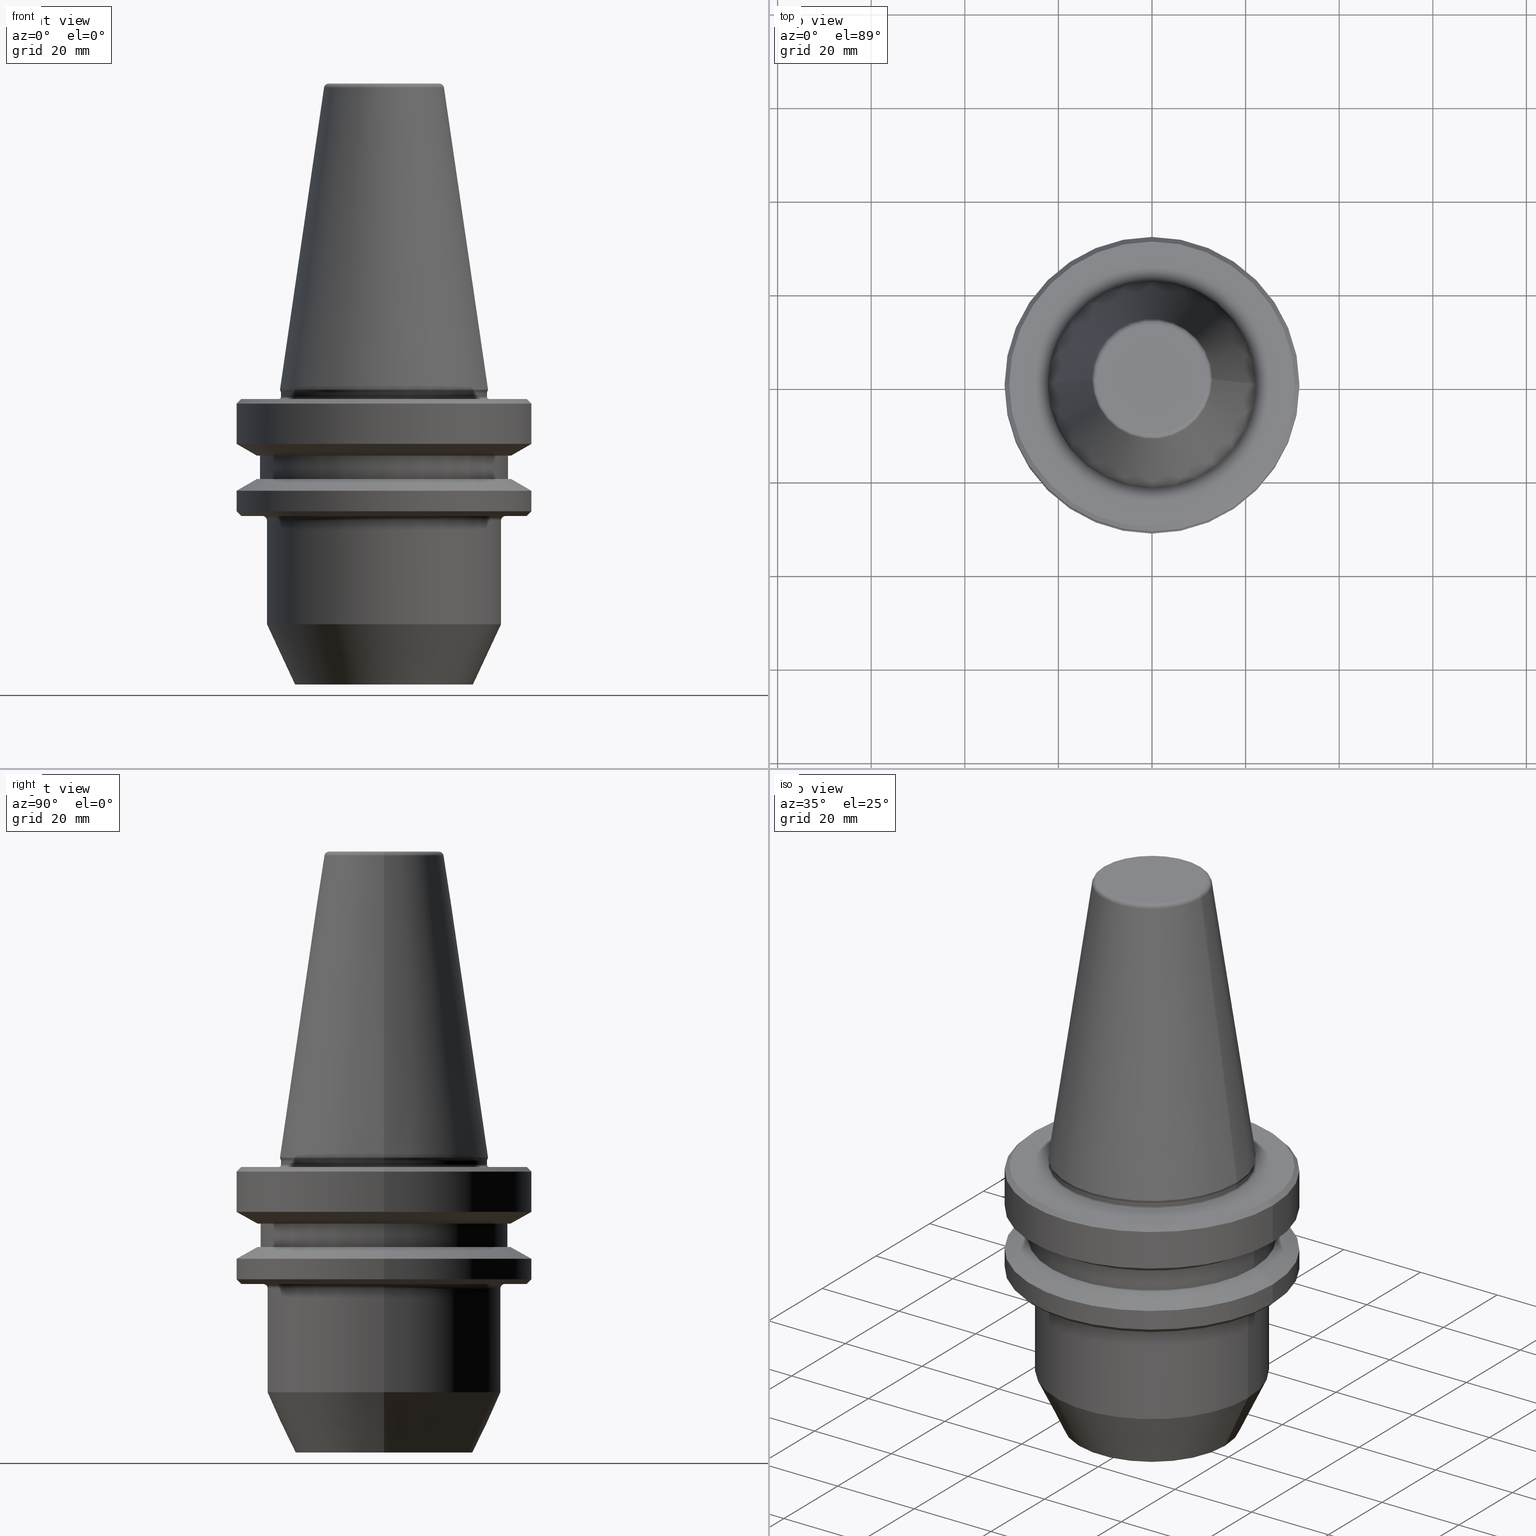
[diagram: canonical four-view strip — front | top / right | iso, engineering-drawing reading convention]
A machine part, canonical four-view strip (front | top / right | iso — engineering-drawing reading convention). The complete STEP part file that produces these views, byte-faithful:
ISO-10303-21;
HEADER;
FILE_DESCRIPTION (( 'STEP AP203' ),
    '1' );
FILE_NAME ('BT40 WE18 063 AD-6.3G15000 SL.STEP',
    '2019-05-22T08:52:29',
    ( '' ),
    ( '' ),
    'SwSTEP 2.0',
    'SolidWorks 2014',
    '' );
FILE_SCHEMA (( 'CONFIG_CONTROL_DESIGN' ));
ENDSEC;

DATA;
#1 = AXIS2_PLACEMENT_3D ( 'NONE', #7, #927, #478 ) ;
#2 = ORIENTED_EDGE ( 'NONE', *, *, #129, .F. ) ;
#3 = AXIS2_PLACEMENT_3D ( 'NONE', #555, #20, #633 ) ;
#4 = DIRECTION ( 'NONE',  ( 1.000000000000000000, 0.0000000000000000000, 0.0000000000000000000 ) ) ;
#5 = APPROVAL_DATE_TIME ( #267, #305 ) ;
#6 = LINE ( 'NONE', #827, #689 ) ;
#7 = CARTESIAN_POINT ( 'NONE',  ( 0.0000000000000000000, 26.50000000000007800, -13.41128678834002700 ) ) ;
#8 = FACE_OUTER_BOUND ( 'NONE', #967, .T. ) ;
#9 = DIRECTION ( 'NONE',  ( -0.0000000000000000000, -0.0000000000000000000, 1.000000000000000000 ) ) ;
#10 = AXIS2_PLACEMENT_3D ( 'NONE', #307, #844, #398 ) ;
#11 = ORIENTED_EDGE ( 'NONE', *, *, #376, .T. ) ;
#12 = AXIS2_PLACEMENT_3D ( 'NONE', #473, #993, #544 ) ;
#13 = ORIENTED_EDGE ( 'NONE', *, *, #921, .F. ) ;
#14 = DIRECTION ( 'NONE',  ( 0.7071067811865474600, 0.0000000000000000000, 0.7071067811865475700 ) ) ;
#15 = DIRECTION ( 'NONE',  ( -1.000000000000000000, 1.224646799147359900E-016, 0.0000000000000000000 ) ) ;
#16 = AXIS2_PLACEMENT_3D ( 'NONE', #107, #682, #615 ) ;
#17 = AXIS2_PLACEMENT_3D ( 'NONE', #991, #540, #4 ) ;
#18 = ORIENTED_EDGE ( 'NONE', *, *, #898, .F. ) ;
#19 = EDGE_CURVE ( 'NONE', #306, #385, #936, .T. ) ;
#20 = DIRECTION ( 'NONE',  ( -0.0000000000000000000, -0.0000000000000000000, 1.000000000000000000 ) ) ;
#21 = ADVANCED_FACE ( 'NONE', ( #837 ), #912, .T. ) ;
#22 = ORGANIZATION ( 'UNSPECIFIED', 'UNSPECIFIED', '' ) ;
#23 = FACE_OUTER_BOUND ( 'NONE', #1051, .T. ) ;
#24 = TOROIDAL_SURFACE ( 'NONE', #885, 22.39999999999986400, 0.4000000000001126500 ) ;
#25 =( NAMED_UNIT ( * ) PLANE_ANGLE_UNIT ( ) SI_UNIT ( $, .RADIAN. ) );
#26 = ORIENTED_EDGE ( 'NONE', *, *, #513, .T. ) ;
#27 = ORIENTED_EDGE ( 'NONE', *, *, #817, .T. ) ;
#28 = APPROVAL_STATUS ( 'not_yet_approved' ) ;
#29 = AXIS2_PLACEMENT_3D ( 'NONE', #752, #206, #985 ) ;
#30 = ORIENTED_EDGE ( 'NONE', *, *, #898, .T. ) ;
#31 = DIRECTION ( 'NONE',  ( -0.0000000000000000000, -0.0000000000000000000, 1.000000000000000000 ) ) ;
#32 = ORIENTED_EDGE ( 'NONE', *, *, #19, .F. ) ;
#33 = EDGE_LOOP ( 'NONE', ( #695, #470 ) ) ;
#34 = AXIS2_PLACEMENT_3D ( 'NONE', #685, #215, #757 ) ;
#35 = ORIENTED_EDGE ( 'NONE', *, *, #563, .T. ) ;
#36 = CARTESIAN_POINT ( 'NONE',  ( 26.50000000000007800, 0.0000000000000000000, -18.41128678844344800 ) ) ;
#37 = DIRECTION ( 'NONE',  ( 1.000000000000000000, 0.0000000000000000000, 0.0000000000000000000 ) ) ;
#38 = CARTESIAN_POINT ( 'NONE',  ( 0.0000000000000000000, 0.0000000000000000000, -1.311286788340082500 ) ) ;
#39 = AXIS2_PLACEMENT_3D ( 'NONE', #911, #980, #380 ) ;
#40 = AXIS2_PLACEMENT_3D ( 'NONE', #698, #630, #124 ) ;
#41 = APPROVAL_PERSON_ORGANIZATION ( #299, #305, #565 ) ;
#42 = DIRECTION ( 'NONE',  ( 1.000000000000000000, 0.0000000000000000000, 0.0000000000000000000 ) ) ;
#43 = VECTOR ( 'NONE', #377, 1000.000000000000000 ) ;
#44 = FACE_OUTER_BOUND ( 'NONE', #641, .T. ) ;
#45 = CARTESIAN_POINT ( 'NONE',  ( -31.50000000000019500, 3.857637417314186400E-015, -20.91142879476059900 ) ) ;
#46 = EDGE_LOOP ( 'NONE', ( #705, #587, #822, #542 ) ) ;
#47 = DIRECTION ( 'NONE',  ( 1.000000000000000000, 0.0000000000000000000, 0.0000000000000000000 ) ) ;
#48 = AXIS2_PLACEMENT_3D ( 'NONE', #611, #104, #679 ) ;
#49 = ORIENTED_EDGE ( 'NONE', *, *, #793, .F. ) ;
#50 = DIRECTION ( 'NONE',  ( 1.000000000000000000, 0.0000000000000000000, 0.0000000000000000000 ) ) ;
#51 = DIRECTION ( 'NONE',  ( -0.0000000000000000000, -0.0000000000000000000, 1.000000000000000000 ) ) ;
#52 = VERTEX_POINT ( 'NONE', #36 ) ;
#53 = PLANE ( 'NONE',  #295 ) ;
#54 = CARTESIAN_POINT ( 'NONE',  ( 0.0000000000000000000, 0.0000000000000000000, -26.31128678844368800 ) ) ;
#55 = DIRECTION ( 'NONE',  ( 1.000000000000000000, 0.0000000000000000000, 0.0000000000000000000 ) ) ;
#56 = EDGE_CURVE ( 'NONE', #336, #445, #532, .T. ) ;
#57 = DIRECTION ( 'NONE',  ( -0.0000000000000000000, -0.0000000000000000000, 1.000000000000000000 ) ) ;
#58 = DIRECTION ( 'NONE',  ( -0.0000000000000000000, -0.0000000000000000000, 1.000000000000000000 ) ) ;
#59 = CIRCLE ( 'NONE', #3, 22.02412295168547700 ) ;
#60 = AXIS2_PLACEMENT_3D ( 'NONE', #390, #917, #466 ) ;
#61 = CIRCLE ( 'NONE', #88, 25.00000000000000000 ) ;
#62 = DIRECTION ( 'NONE',  ( 1.000000000000000000, 0.0000000000000000000, 0.0000000000000000000 ) ) ;
#63 = DIRECTION ( 'NONE',  ( 1.000000000000000000, 0.0000000000000000000, 0.0000000000000000000 ) ) ;
#64 = AXIS2_PLACEMENT_3D ( 'NONE', #1045, #608, #101 ) ;
#65 = ORIENTED_EDGE ( 'NONE', *, *, #784, .T. ) ;
#66 = EDGE_CURVE ( 'NONE', #992, #545, #61, .T. ) ;
#67 = ORIENTED_EDGE ( 'NONE', *, *, #767, .T. ) ;
#68 = CARTESIAN_POINT ( 'NONE',  ( 19.00000000000000000, 0.0000000000000000000, -62.31128678834036100 ) ) ;
#69 = PRODUCT ( 'BT40 WE18 063 AD-6.3G15000 SL', 'BT40 WE18 063 AD-6.3G15000 SL', '', ( #941 ) ) ;
#70 = AXIS2_PLACEMENT_3D ( 'NONE', #95, #455, #606 ) ;
#71 = CARTESIAN_POINT ( 'NONE',  ( 22.02412295168547700, 0.0000000000000000000, 0.1368080573304758500 ) ) ;
#72 = EDGE_CURVE ( 'NONE', #336, #362, #96, .T. ) ;
#73 = ADVANCED_FACE ( 'NONE', ( #702 ), #677, .T. ) ;
#74 = AXIS2_PLACEMENT_3D ( 'NONE', #271, #86, #275 ) ;
#75 = COORDINATED_UNIVERSAL_TIME_OFFSET ( 5, 30, .AHEAD. ) ;
#76 = EDGE_CURVE ( 'NONE', #1049, #1017, #886, .T. ) ;
#77 = FACE_OUTER_BOUND ( 'NONE', #780, .T. ) ;
#78 = LINE ( 'NONE', #646, #923 ) ;
#79 = AXIS2_PLACEMENT_3D ( 'NONE', #181, #733, #265 ) ;
#80 = ORIENTED_EDGE ( 'NONE', *, *, #572, .T. ) ;
#81 = DIRECTION ( 'NONE',  ( 1.000000000000000000, 0.0000000000000000000, 0.0000000000000000000 ) ) ;
#82 = DIRECTION ( 'NONE',  ( 1.000000000000000000, 0.0000000000000000000, 0.0000000000000000000 ) ) ;
#83 = ADVANCED_FACE ( 'NONE', ( #288 ), #24, .F. ) ;
#84 = EDGE_CURVE ( 'NONE', #915, #862, #255, .T. ) ;
#85 = ORIENTED_EDGE ( 'NONE', *, *, #56, .F. ) ;
#86 = DIRECTION ( 'NONE',  ( -0.0000000000000000000, -0.0000000000000000000, 1.000000000000000000 ) ) ;
#87 = CARTESIAN_POINT ( 'NONE',  ( 31.49999999999986100, 0.0000000000000000000, -10.91114478202370800 ) ) ;
#88 = AXIS2_PLACEMENT_3D ( 'NONE', #158, #406, #816 ) ;
#89 = DIRECTION ( 'NONE',  ( -0.3420201433261634300, 4.188538737683050000E-017, 0.9396926207857283500 ) ) ;
#90 = CARTESIAN_POINT ( 'NONE',  ( 0.0000000000000000000, 0.0000000000000000000, -10.91114478202370800 ) ) ;
#91 = FACE_OUTER_BOUND ( 'NONE', #999, .T. ) ;
#92 = AXIS2_PLACEMENT_3D ( 'NONE', #197, #746, #284 ) ;
#93 = CIRCLE ( 'NONE', #164, 19.00000000000000000 ) ;
#94 = ADVANCED_FACE ( 'NONE', ( #486 ), #855, .T. ) ;
#95 = CARTESIAN_POINT ( 'NONE',  ( 0.0000000000000000000, 0.0000000000000000000, -26.31128678844368800 ) ) ;
#96 = LINE ( 'NONE', #442, #512 ) ;
#97 = DIRECTION ( 'NONE',  ( -0.0000000000000000000, -0.0000000000000000000, 1.000000000000000000 ) ) ;
#98 = EDGE_CURVE ( 'NONE', #948, #259, #658, .T. ) ;
#99 = ADVANCED_FACE ( 'NONE', ( #317 ), #230, .F. ) ;
#100 = ORIENTED_EDGE ( 'NONE', *, *, #835, .F. ) ;
#101 = DIRECTION ( 'NONE',  ( 1.000000000000000000, 0.0000000000000000000, 0.0000000000000000000 ) ) ;
#102 = ORIENTED_EDGE ( 'NONE', *, *, #807, .T. ) ;
#103 = AXIS2_PLACEMENT_3D ( 'NONE', #700, #321, #856 ) ;
#104 = DIRECTION ( 'NONE',  ( -0.0000000000000000000, -0.0000000000000000000, 1.000000000000000000 ) ) ;
#105 = AXIS2_PLACEMENT_3D ( 'NONE', #901, #447, #970 ) ;
#106 = ORIENTED_EDGE ( 'NONE', *, *, #928, .T. ) ;
#107 = CARTESIAN_POINT ( 'NONE',  ( 0.0000000000000000000, 0.0000000000000000000, 82.74845858742440900 ) ) ;
#108 = CARTESIAN_POINT ( 'NONE',  ( 0.0000000000000000000, 0.0000000000000000000, -2.311286788340083400 ) ) ;
#109 = DATE_AND_TIME ( #358, #564 ) ;
#110 = AXIS2_PLACEMENT_3D ( 'NONE', #812, #446, #896 ) ;
#111 = LINE ( 'NONE', #187, #140 ) ;
#112 = CIRCLE ( 'NONE', #290, 0.5000000000000282000 ) ;
#113 = AXIS2_PLACEMENT_3D ( 'NONE', #1034, #599, #81 ) ;
#114 = ORIENTED_EDGE ( 'NONE', *, *, #66, .F. ) ;
#115 = AXIS2_PLACEMENT_3D ( 'NONE', #894, #444, #965 ) ;
#116 = AXIS2_PLACEMENT_3D ( 'NONE', #176, #729, #260 ) ;
#117 = AXIS2_PLACEMENT_3D ( 'NONE', #891, #441, #961 ) ;
#118 = DIRECTION ( 'NONE',  ( -0.0000000000000000000, -0.0000000000000000000, 1.000000000000000000 ) ) ;
#119 = DIRECTION ( 'NONE',  ( -0.0000000000000000000, -0.0000000000000000000, 1.000000000000000000 ) ) ;
#120 = ADVANCED_FACE ( 'NONE', ( #830, #1032 ), #391, .F. ) ;
#121 = CARTESIAN_POINT ( 'NONE',  ( 0.0000000000000000000, 0.0000000000000000000, -26.31128678844368800 ) ) ;
#122 = AXIS2_PLACEMENT_3D ( 'NONE', #169, #727, #258 ) ;
#123 = VECTOR ( 'NONE', #312, 1000.000000000000000 ) ;
#124 = DIRECTION ( 'NONE',  ( -1.000000000000000000, 0.0000000000000000000, 0.0000000000000000000 ) ) ;
#125 = CIRCLE ( 'NONE', #179, 21.99999999999979700 ) ;
#126 = AXIS2_PLACEMENT_3D ( 'NONE', #888, #58, #341 ) ;
#127 = EDGE_LOOP ( 'NONE', ( #654, #222 ) ) ;
#128 = ORIENTED_EDGE ( 'NONE', *, *, #373, .T. ) ;
#129 = EDGE_CURVE ( 'NONE', #955, #900, #440, .T. ) ;
#130 = DIRECTION ( 'NONE',  ( -0.0000000000000000000, -0.0000000000000000000, 1.000000000000000000 ) ) ;
#131 = AXIS2_PLACEMENT_3D ( 'NONE', #583, #249, #50 ) ;
#132 = DIRECTION ( 'NONE',  ( 1.000000000000000000, 0.0000000000000000000, 0.0000000000000000000 ) ) ;
#133 = EDGE_CURVE ( 'NONE', #306, #198, #637, .T. ) ;
#134 = ADVANCED_FACE ( 'NONE', ( #207 ), #1010, .T. ) ;
#135 = AXIS2_PLACEMENT_3D ( 'NONE', #1025, #435, #62 ) ;
#136 = AXIS2_PLACEMENT_3D ( 'NONE', #797, #437, #1022 ) ;
#137 = PERSON_AND_ORGANIZATION_ROLE ( 'creator' ) ;
#138 = DIRECTION ( 'NONE',  ( -0.0000000000000000000, -0.0000000000000000000, 1.000000000000000000 ) ) ;
#139 = PERSON_AND_ORGANIZATION ( #651, #22 ) ;
#140 = VECTOR ( 'NONE', #737, 1000.000000000000100 ) ;
#141 = CIRCLE ( 'NONE', #348, 21.99999999999982600 ) ;
#142 = ORIENTED_EDGE ( 'NONE', *, *, #84, .F. ) ;
#143 = AXIS2_PLACEMENT_3D ( 'NONE', #337, #430, #952 ) ;
#144 = AXIS2_PLACEMENT_3D ( 'NONE', #787, #1018, #720 ) ;
#145 = EDGE_LOOP ( 'NONE', ( #715, #546, #949, #257 ) ) ;
#146 = AXIS2_PLACEMENT_3D ( 'NONE', #54, #721, #958 ) ;
#147 = VERTEX_POINT ( 'NONE', #879 ) ;
#148 = AXIS2_PLACEMENT_3D ( 'NONE', #157, #246, #950 ) ;
#149 = CARTESIAN_POINT ( 'NONE',  ( 19.00000000000000000, 0.0000000000000000000, -62.31128678834036100 ) ) ;
#150 = CARTESIAN_POINT ( 'NONE',  ( 0.0000000000000000000, 0.0000000000000000000, -0.8112867883400820500 ) ) ;
#151 = CARTESIAN_POINT ( 'NONE',  ( 0.0000000000000000000, 0.0000000000000000000, -27.31128678844368800 ) ) ;
#152 = AXIS2_PLACEMENT_3D ( 'NONE', #425, #882, #877 ) ;
#153 = ORIENTED_EDGE ( 'NONE', *, *, #373, .F. ) ;
#154 = AXIS2_PLACEMENT_3D ( 'NONE', #422, #569, #37 ) ;
#155 = VECTOR ( 'NONE', #622, 1000.000000000000000 ) ;
#156 = VECTOR ( 'NONE', #694, 1000.000000000000100 ) ;
#157 = CARTESIAN_POINT ( 'NONE',  ( 0.0000000000000000000, 0.0000000000000000000, -2.311286788340083400 ) ) ;
#158 = CARTESIAN_POINT ( 'NONE',  ( 0.0000000000000000000, 0.0000000000000000000, -49.44424526528276700 ) ) ;
#159 = ADVANCED_FACE ( 'NONE', ( #806 ), #594, .T. ) ;
#160 = EDGE_LOOP ( 'NONE', ( #142, #508, #842, #18 ) ) ;
#161 = AXIS2_PLACEMENT_3D ( 'NONE', #710, #493, #1024 ) ;
#162 = ORIENTED_EDGE ( 'NONE', *, *, #410, .T. ) ;
#163 = DIRECTION ( 'NONE',  ( 1.000000000000000000, 0.0000000000000000000, 0.0000000000000000000 ) ) ;
#164 = AXIS2_PLACEMENT_3D ( 'NONE', #1014, #782, #235 ) ;
#165 = CARTESIAN_POINT ( 'NONE',  ( 12.81220206925713600, 0.0000000000000000000, 65.23302140054848100 ) ) ;
#166 = EDGE_CURVE ( 'NONE', #734, #421, #777, .T. ) ;
#167 = ORIENTED_EDGE ( 'NONE', *, *, #817, .F. ) ;
#168 = AXIS2_PLACEMENT_3D ( 'NONE', #510, #331, #866 ) ;
#169 = CARTESIAN_POINT ( 'NONE',  ( 11.82266927716790800, 0.0000000000000000000, 65.08871321166032000 ) ) ;
#170 = CARTESIAN_POINT ( 'NONE',  ( -12.81220206925713600, 1.569042225414484800E-015, 65.23302140054848100 ) ) ;
#171 = AXIS2_PLACEMENT_3D ( 'NONE', #150, #576, #163 ) ;
#172 = PERSON_AND_ORGANIZATION ( #651, #22 ) ;
#173 = AXIS2_PLACEMENT_3D ( 'NONE', #151, #771, #586 ) ;
#174 = FACE_OUTER_BOUND ( 'NONE', #33, .T. ) ;
#175 = CIRCLE ( 'NONE', #322, 0.4000000000001120400 ) ;
#176 = CARTESIAN_POINT ( 'NONE',  ( -11.82266927716790800, 1.447859408766143000E-015, 65.08871321166032000 ) ) ;
#177 = AXIS2_PLACEMENT_3D ( 'NONE', #562, #479, #930 ) ;
#178 = ORIENTED_EDGE ( 'NONE', *, *, #878, .T. ) ;
#179 = AXIS2_PLACEMENT_3D ( 'NONE', #623, #412, #1023 ) ;
#180 = ORIENTED_EDGE ( 'NONE', *, *, #913, .F. ) ;
#181 = CARTESIAN_POINT ( 'NONE',  ( 0.0000000000000000000, 0.0000000000000000000, -18.41128678844344800 ) ) ;
#182 = AXIS2_PLACEMENT_3D ( 'NONE', #574, #590, #494 ) ;
#183 = ORIENTED_EDGE ( 'NONE', *, *, #740, .T. ) ;
#184 = DIRECTION ( 'NONE',  ( -0.0000000000000000000, -0.0000000000000000000, 1.000000000000000000 ) ) ;
#185 = AXIS2_PLACEMENT_3D ( 'NONE', #236, #327, #865 ) ;
#186 = AXIS2_PLACEMENT_3D ( 'NONE', #1015, #851, #653 ) ;
#187 = CARTESIAN_POINT ( 'NONE',  ( -27.16962701892278200, 3.327319676275122900E-015, -13.41128678834002700 ) ) ;
#188 = DIRECTION ( 'NONE',  ( 1.000000000000000000, 0.0000000000000000000, 0.0000000000000000000 ) ) ;
#189 = AXIS2_PLACEMENT_3D ( 'NONE', #379, #51, #63 ) ;
#190 = CIRCLE ( 'NONE', #34, 31.50000000000019500 ) ;
#191 = CIRCLE ( 'NONE', #189, 30.49999999999997200 ) ;
#192 = ORIENTED_EDGE ( 'NONE', *, *, #563, .F. ) ;
#193 = AXIS2_PLACEMENT_3D ( 'NONE', #38, #1029, #778 ) ;
#194 = ORIENTED_EDGE ( 'NONE', *, *, #76, .F. ) ;
#195 = ORIENTED_EDGE ( 'NONE', *, *, #517, .F. ) ;
#196 = AXIS2_PLACEMENT_3D ( 'NONE', #687, #308, #42 ) ;
#197 = CARTESIAN_POINT ( 'NONE',  ( 0.0000000000000000000, 0.0000000000000000000, -27.31128678844368800 ) ) ;
#198 = VERTEX_POINT ( 'NONE', #978 ) ;
#199 = AXIS2_PLACEMENT_3D ( 'NONE', #1043, #825, #906 ) ;
#200 = VERTEX_POINT ( 'NONE', #281 ) ;
#201 = CARTESIAN_POINT ( 'NONE',  ( -27.16962701892167300, 0.0000000000000000000, -18.41128678844344800 ) ) ;
#202 = DIRECTION ( 'NONE',  ( 1.224646799147353200E-016, 1.000000000000000000, 0.0000000000000000000 ) ) ;
#203 = COORDINATED_UNIVERSAL_TIME_OFFSET ( 5, 30, .AHEAD. ) ;
#204 = AXIS2_PLACEMENT_3D ( 'NONE', #501, #649, #47 ) ;
#205 = CONICAL_SURFACE ( 'NONE', #126, 19.00000000000000000, 0.4363323129985753300 ) ;
#206 = DIRECTION ( 'NONE',  ( -0.0000000000000000000, -0.0000000000000000000, 1.000000000000000000 ) ) ;
#207 = FACE_OUTER_BOUND ( 'NONE', #210, .T. ) ;
#208 = CARTESIAN_POINT ( 'NONE',  ( 0.0000000000000000000, 0.0000000000000000000, 65.08871321166032000 ) ) ;
#209 = ORIENTED_EDGE ( 'NONE', *, *, #496, .T. ) ;
#210 = EDGE_LOOP ( 'NONE', ( #26, #213, #452, #369 ) ) ;
#211 = CC_DESIGN_PERSON_AND_ORGANIZATION_ASSIGNMENT ( #730, #324, ( #874 ) ) ;
#212 = DIRECTION ( 'NONE',  ( 1.000000000000000000, 0.0000000000000000000, 0.0000000000000000000 ) ) ;
#213 = ORIENTED_EDGE ( 'NONE', *, *, #762, .T. ) ;
#214 = AXIS2_PLACEMENT_3D ( 'NONE', #368, #523, #1038 ) ;
#215 = DIRECTION ( 'NONE',  ( -0.0000000000000000000, -0.0000000000000000000, 1.000000000000000000 ) ) ;
#216 = CARTESIAN_POINT ( 'NONE',  ( 0.0000000000000000000, 0.0000000000000000000, 0.1368080573304758500 ) ) ;
#217 = EDGE_CURVE ( 'NONE', #147, #471, #175, .T. ) ;
#218 = EDGE_LOOP ( 'NONE', ( #458, #794 ) ) ;
#219 = CARTESIAN_POINT ( 'NONE',  ( 22.22499999999971700, 0.0000000000000000000, 0.6887132116596417200 ) ) ;
#220 = CIRCLE ( 'NONE', #10, 31.49999999999986100 ) ;
#221 = CIRCLE ( 'NONE', #186, 12.81220206925715000 ) ;
#222 = ORIENTED_EDGE ( 'NONE', *, *, #556, .T. ) ;
#223 = CARTESIAN_POINT ( 'NONE',  ( -21.99999999999982600, 2.724839128102840900E-015, -0.8112867883400820500 ) ) ;
#224 = CARTESIAN_POINT ( 'NONE',  ( 0.0000000000000000000, 0.0000000000000000000, 82.74845858742440900 ) ) ;
#225 = AXIS2_PLACEMENT_3D ( 'NONE', #857, #247, #426 ) ;
#226 = VERTEX_POINT ( 'NONE', #741 ) ;
#227 = EDGE_CURVE ( 'NONE', #1053, #862, #614, .T. ) ;
#228 = DIRECTION ( 'NONE',  ( -1.000000000000000000, 0.0000000000000000000, 0.0000000000000000000 ) ) ;
#229 = CIRCLE ( 'NONE', #131, 26.50000000000007800 ) ;
#230 = TOROIDAL_SURFACE ( 'NONE', #325, 26.00000000000000400, 1.000000000000002700 ) ;
#231 = EDGE_CURVE ( 'NONE', #840, #617, #416, .T. ) ;
#232 = APPROVAL_STATUS ( 'not_yet_approved' ) ;
#233 = AXIS2_PLACEMENT_3D ( 'NONE', #261, #1002, #995 ) ;
#234 = DIRECTION ( 'NONE',  ( 0.1443081888881784800, 1.767265616126594100E-017, -0.9895327920891828800 ) ) ;
#235 = DIRECTION ( 'NONE',  ( 1.000000000000000000, 0.0000000000000000000, 0.0000000000000000000 ) ) ;
#236 = CARTESIAN_POINT ( 'NONE',  ( 0.0000000000000000000, 0.0000000000000000000, 0.6887132116596417200 ) ) ;
#237 = AXIS2_PLACEMENT_3D ( 'NONE', #399, #138, #55 ) ;
#238 = ORIENTED_EDGE ( 'NONE', *, *, #433, .F. ) ;
#239 = AXIS2_PLACEMENT_3D ( 'NONE', #758, #763, #697 ) ;
#240 = DIRECTION ( 'NONE',  ( -0.0000000000000000000, -0.0000000000000000000, 1.000000000000000000 ) ) ;
#241 = CONICAL_SURFACE ( 'NONE', #70, 30.49999999999997200, 0.7853981633974482800 ) ;
#242 = AXIS2_PLACEMENT_3D ( 'NONE', #1026, #652, #861 ) ;
#243 = FACE_OUTER_BOUND ( 'NONE', #981, .T. ) ;
#244 = EDGE_LOOP ( 'NONE', ( #769, #881 ) ) ;
#245 = CARTESIAN_POINT ( 'NONE',  ( 31.50000000000019500, 0.0000000000000000000, -20.91142879476059900 ) ) ;
#246 = DIRECTION ( 'NONE',  ( -0.0000000000000000000, -0.0000000000000000000, 1.000000000000000000 ) ) ;
#247 = DIRECTION ( 'NONE',  ( -0.0000000000000000000, -0.0000000000000000000, 1.000000000000000000 ) ) ;
#248 = AXIS2_PLACEMENT_3D ( 'NONE', #253, #551, #588 ) ;
#249 = DIRECTION ( 'NONE',  ( -0.0000000000000000000, -0.0000000000000000000, 1.000000000000000000 ) ) ;
#250 = AXIS2_PLACEMENT_3D ( 'NONE', #121, #351, #188 ) ;
#251 = AXIS2_PLACEMENT_3D ( 'NONE', #345, #957, #943 ) ;
#252 = CARTESIAN_POINT ( 'NONE',  ( 0.0000000000000000000, 11.82266927716801800, 66.08871321166014900 ) ) ;
#253 = CARTESIAN_POINT ( 'NONE',  ( 0.0000000000000000000, 0.0000000000000000000, -20.91142879476059900 ) ) ;
#254 = CYLINDRICAL_SURFACE ( 'NONE', #135, 21.99999999999981200 ) ;
#255 = LINE ( 'NONE', #987, #1048 ) ;
#256 = AXIS2_PLACEMENT_3D ( 'NONE', #724, #801, #960 ) ;
#257 = ORIENTED_EDGE ( 'NONE', *, *, #231, .F. ) ;
#258 = DIRECTION ( 'NONE',  ( 0.0000000000000000000, 0.0000000000000000000, -1.000000000000000000 ) ) ;
#259 = VERTEX_POINT ( 'NONE', #738 ) ;
#260 = DIRECTION ( 'NONE',  ( -1.000000000000000000, 1.224646799147353900E-016, 0.0000000000000000000 ) ) ;
#261 = CARTESIAN_POINT ( 'NONE',  ( 0.0000000000000000000, 0.0000000000000000000, 0.6887132116596417200 ) ) ;
#262 = VERTEX_POINT ( 'NONE', #87 ) ;
#263 = ORIENTED_EDGE ( 'NONE', *, *, #798, .T. ) ;
#264 = EDGE_LOOP ( 'NONE', ( #465, #102, #570, #381 ) ) ;
#265 = DIRECTION ( 'NONE',  ( 1.000000000000000000, 0.0000000000000000000, 0.0000000000000000000 ) ) ;
#266 = DIRECTION ( 'NONE',  ( 1.000000000000000000, 0.0000000000000000000, 0.0000000000000000000 ) ) ;
#267 = DATE_AND_TIME ( #495, #688 ) ;
#268 = AXIS2_PLACEMENT_3D ( 'NONE', #216, #9, #1013 ) ;
#269 = CIRCLE ( 'NONE', #92, 25.00000000000000000 ) ;
#270 = CIRCLE ( 'NONE', #268, 22.02412295168547700 ) ;
#271 = CARTESIAN_POINT ( 'NONE',  ( 0.0000000000000000000, 0.0000000000000000000, 82.74845858742440900 ) ) ;
#272 = ORIENTED_EDGE ( 'NONE', *, *, #893, .F. ) ;
#273 = DIRECTION ( 'NONE',  ( -0.0000000000000000000, -0.0000000000000000000, 1.000000000000000000 ) ) ;
#274 = AXIS2_PLACEMENT_3D ( 'NONE', #620, #31, #1028 ) ;
#275 = DIRECTION ( 'NONE',  ( 1.000000000000000000, 0.0000000000000000000, 0.0000000000000000000 ) ) ;
#276 = AXIS2_PLACEMENT_3D ( 'NONE', #404, #826, #453 ) ;
#277 = VERTEX_POINT ( 'NONE', #448 ) ;
#278 = ORIENTED_EDGE ( 'NONE', *, *, #514, .F. ) ;
#279 = ADVANCED_FACE ( 'NONE', ( #964 ), #568, .T. ) ;
#280 = CARTESIAN_POINT ( 'NONE',  ( 31.49999999999986100, 0.0000000000000000000, 82.74845858742440900 ) ) ;
#281 = CARTESIAN_POINT ( 'NONE',  ( -31.49999999999986100, 3.857637417314145300E-015, -10.91114478202370800 ) ) ;
#282 = AXIS2_PLACEMENT_3D ( 'NONE', #90, #119, #795 ) ;
#283 = ORIENTED_EDGE ( 'NONE', *, *, #793, .T. ) ;
#284 = DIRECTION ( 'NONE',  ( 1.000000000000000000, 0.0000000000000000000, 0.0000000000000000000 ) ) ;
#285 = DIRECTION ( 'NONE',  ( -0.0000000000000000000, -0.0000000000000000000, 1.000000000000000000 ) ) ;
#286 = AXIS2_PLACEMENT_3D ( 'NONE', #224, #347, #959 ) ;
#287 = FACE_OUTER_BOUND ( 'NONE', #499, .T. ) ;
#288 = FACE_OUTER_BOUND ( 'NONE', #382, .T. ) ;
#289 = ORIENTED_EDGE ( 'NONE', *, *, #762, .F. ) ;
#290 = AXIS2_PLACEMENT_3D ( 'NONE', #869, #785, #719 ) ;
#291 = CARTESIAN_POINT ( 'NONE',  ( 22.49999999999985400, 0.0000000000000000000, -1.311286788340096300 ) ) ;
#292 = CARTESIAN_POINT ( 'NONE',  ( -22.39999999999986400, 2.743208830090054500E-015, -5.551115123125782700E-014 ) ) ;
#293 = EDGE_CURVE ( 'NONE', #389, #955, #141, .T. ) ;
#294 = EDGE_LOOP ( 'NONE', ( #902, #1020, #990, #32 ) ) ;
#295 = AXIS2_PLACEMENT_3D ( 'NONE', #252, #1021, #644 ) ;
#296 = AXIS2_PLACEMENT_3D ( 'NONE', #747, #285, #266 ) ;
#297 = ORIENTED_EDGE ( 'NONE', *, *, #1005, .F. ) ;
#298 = VERTEX_POINT ( 'NONE', #245 ) ;
#299 = PERSON_AND_ORGANIZATION ( #651, #22 ) ;
#300 = CC_DESIGN_DATE_AND_TIME_ASSIGNMENT ( #516, #489, ( #310 ) ) ;
#301 = TOROIDAL_SURFACE ( 'NONE', #29, 22.49999999999985400, 0.5000000000000282000 ) ;
#302 = VECTOR ( 'NONE', #365, 1000.000000000000000 ) ;
#303 = EDGE_CURVE ( 'NONE', #900, #860, #755, .T. ) ;
#304 = ORIENTED_EDGE ( 'NONE', *, *, #370, .T. ) ;
#305 = APPROVAL ( #1012, 'UNSPECIFIED' ) ;
#306 = VERTEX_POINT ( 'NONE', #71 ) ;
#307 = CARTESIAN_POINT ( 'NONE',  ( 0.0000000000000000000, 0.0000000000000000000, -10.91114478202370800 ) ) ;
#308 = DIRECTION ( 'NONE',  ( -0.0000000000000000000, -0.0000000000000000000, 1.000000000000000000 ) ) ;
#309 = ADVANCED_FACE ( 'NONE', ( #464 ), #53, .F. ) ;
#310 = SECURITY_CLASSIFICATION ( '', '', #417 ) ;
#311 = EDGE_LOOP ( 'NONE', ( #976, #283, #11, #153 ) ) ;
#312 = DIRECTION ( 'NONE',  ( -0.0000000000000000000, -0.0000000000000000000, 1.000000000000000000 ) ) ;
#313 = VERTEX_POINT ( 'NONE', #875 ) ;
#314 = CARTESIAN_POINT ( 'NONE',  ( 31.49999999999986100, 0.0000000000000000000, -2.311286788340083400 ) ) ;
#315 = CIRCLE ( 'NONE', #144, 1.000000000000000900 ) ;
#316 = AXIS2_PLACEMENT_3D ( 'NONE', #660, #994, #904 ) ;
#317 = FACE_OUTER_BOUND ( 'NONE', #491, .T. ) ;
#318 = ADVANCED_FACE ( 'NONE', ( #732 ), #541, .T. ) ;
#319 = DIRECTION ( 'NONE',  ( 1.000000000000000000, 0.0000000000000000000, 0.0000000000000000000 ) ) ;
#320 = AXIS2_PLACEMENT_3D ( 'NONE', #529, #240, #431 ) ;
#321 = DIRECTION ( 'NONE',  ( 0.0000000000000000000, 0.0000000000000000000, 1.000000000000000000 ) ) ;
#322 = AXIS2_PLACEMENT_3D ( 'NONE', #292, #577, #15 ) ;
#323 = ORIENTED_EDGE ( 'NONE', *, *, #217, .F. ) ;
#324 = PERSON_AND_ORGANIZATION_ROLE ( 'creator' ) ;
#325 = AXIS2_PLACEMENT_3D ( 'NONE', #982, #716, #680 ) ;
#326 = PERSON_AND_ORGANIZATION ( #651, #22 ) ;
#327 = DIRECTION ( 'NONE',  ( -0.0000000000000000000, -0.0000000000000000000, 1.000000000000000000 ) ) ;
#328 = CYLINDRICAL_SURFACE ( 'NONE', #74, 31.50000000000019500 ) ;
#329 = AXIS2_PLACEMENT_3D ( 'NONE', #823, #202, #751 ) ;
#330 = CIRCLE ( 'NONE', #282, 31.49999999999986100 ) ;
#331 = DIRECTION ( 'NONE',  ( -0.0000000000000000000, -0.0000000000000000000, 1.000000000000000000 ) ) ;
#332 = DIRECTION ( 'NONE',  ( -0.1443081888881784800, 0.0000000000000000000, -0.9895327920891828800 ) ) ;
#333 = EDGE_LOOP ( 'NONE', ( #238, #272, #621, #858 ) ) ;
#334 = AXIS2_PLACEMENT_3D ( 'NONE', #356, #914, #889 ) ;
#335 = CARTESIAN_POINT ( 'NONE',  ( 31.50000000000019500, 3.857637417314186400E-015, -20.91142879476059900 ) ) ;
#336 = VERTEX_POINT ( 'NONE', #170 ) ;
#337 = CARTESIAN_POINT ( 'NONE',  ( 0.0000000000000000000, 0.0000000000000000000, -2.311286788340083400 ) ) ;
#338 = AXIS2_PLACEMENT_3D ( 'NONE', #683, #1046, #372 ) ;
#339 = CC_DESIGN_PERSON_AND_ORGANIZATION_ASSIGNMENT ( #172, #137, ( #414 ) ) ;
#340 = DIRECTION ( 'NONE',  ( 0.3420201433261634300, 0.0000000000000000000, 0.9396926207857283500 ) ) ;
#341 = DIRECTION ( 'NONE',  ( 1.000000000000000000, 0.0000000000000000000, 0.0000000000000000000 ) ) ;
#342 = FACE_OUTER_BOUND ( 'NONE', #145, .T. ) ;
#343 = CIRCLE ( 'NONE', #168, 25.00000000000000000 ) ;
#344 = ORIENTED_EDGE ( 'NONE', *, *, #129, .T. ) ;
#345 = CARTESIAN_POINT ( 'NONE',  ( 0.0000000000000000000, 30.49999999999997200, -26.31128678844368800 ) ) ;
#346 = AXIS2_PLACEMENT_3D ( 'NONE', #666, #601, #319 ) ;
#347 = DIRECTION ( 'NONE',  ( -0.0000000000000000000, -0.0000000000000000000, 1.000000000000000000 ) ) ;
#348 = AXIS2_PLACEMENT_3D ( 'NONE', #631, #711, #132 ) ;
#349 = ORIENTED_EDGE ( 'NONE', *, *, #533, .F. ) ;
#350 = DESIGN_CONTEXT ( 'detailed design', #1008, 'design' ) ;
#351 = DIRECTION ( 'NONE',  ( -0.0000000000000000000, -0.0000000000000000000, 1.000000000000000000 ) ) ;
#352 = AXIS2_PLACEMENT_3D ( 'NONE', #504, #427, #951 ) ;
#353 = EDGE_CURVE ( 'NONE', #389, #860, #112, .T. ) ;
#354 = VERTEX_POINT ( 'NONE', #149 ) ;
#355 = DIRECTION ( 'NONE',  ( -0.0000000000000000000, -0.0000000000000000000, 1.000000000000000000 ) ) ;
#356 = CARTESIAN_POINT ( 'NONE',  ( 0.0000000000000000000, 30.49999999999986100, -1.311286788340082500 ) ) ;
#357 = AXIS2_PLACEMENT_3D ( 'NONE', #524, #526, #456 ) ;
#358 = CALENDAR_DATE ( 2019, 22, 5 ) ;
#359 = CONICAL_SURFACE ( 'NONE', #110, 27.16962701892278200, 1.047197551196600300 ) ;
#360 = FACE_OUTER_BOUND ( 'NONE', #522, .T. ) ;
#361 = EDGE_CURVE ( 'NONE', #226, #908, #986, .T. ) ;
#362 = VERTEX_POINT ( 'NONE', #500 ) ;
#363 = CC_DESIGN_PERSON_AND_ORGANIZATION_ASSIGNMENT ( #326, #942, ( #310 ) ) ;
#364 = DIRECTION ( 'NONE',  ( -0.4226182617406930600, 5.175581015019580500E-017, 0.9063077870366529300 ) ) ;
#365 = DIRECTION ( 'NONE',  ( -0.0000000000000000000, -0.0000000000000000000, 1.000000000000000000 ) ) ;
#366 = ORIENTED_EDGE ( 'NONE', *, *, #376, .F. ) ;
#367 = EDGE_CURVE ( 'NONE', #389, #198, #78, .T. ) ;
#368 = CARTESIAN_POINT ( 'NONE',  ( 0.0000000000000000000, 26.50000000000007800, -18.41128678844344800 ) ) ;
#369 = ORIENTED_EDGE ( 'NONE', *, *, #740, .F. ) ;
#370 = EDGE_CURVE ( 'NONE', #262, #200, #330, .T. ) ;
#371 = DIRECTION ( 'NONE',  ( -0.7071067811865474600, 0.0000000000000000000, -0.7071067811865475700 ) ) ;
#372 = DIRECTION ( 'NONE',  ( 0.0000000000000000000, 0.0000000000000000000, -1.000000000000000000 ) ) ;
#373 = EDGE_CURVE ( 'NONE', #313, #598, #714, .T. ) ;
#374 = LINE ( 'NONE', #625, #973 ) ;
#375 = FACE_OUTER_BOUND ( 'NONE', #333, .T. ) ;
#376 = EDGE_CURVE ( 'NONE', #52, #598, #946, .T. ) ;
#377 = DIRECTION ( 'NONE',  ( -0.0000000000000000000, -0.0000000000000000000, 1.000000000000000000 ) ) ;
#378 = ORIENTED_EDGE ( 'NONE', *, *, #1030, .F. ) ;
#379 = CARTESIAN_POINT ( 'NONE',  ( 0.0000000000000000000, 0.0000000000000000000, -26.31128678844368800 ) ) ;
#380 = DIRECTION ( 'NONE',  ( 1.000000000000000000, 0.0000000000000000000, 0.0000000000000000000 ) ) ;
#381 = ORIENTED_EDGE ( 'NONE', *, *, #814, .F. ) ;
#382 = EDGE_LOOP ( 'NONE', ( #378, #692, #520, #650 ) ) ;
#383 = DIRECTION ( 'NONE',  ( -0.0000000000000000000, -0.0000000000000000000, 1.000000000000000000 ) ) ;
#384 = DIRECTION ( 'NONE',  ( 1.000000000000000000, 0.0000000000000000000, 0.0000000000000000000 ) ) ;
#385 = VERTEX_POINT ( 'NONE', #219 ) ;
#386 = VERTEX_POINT ( 'NONE', #872 ) ;
#387 = EDGE_CURVE ( 'NONE', #445, #385, #691, .T. ) ;
#388 = ADVANCED_FACE ( 'NONE', ( #360 ), #668, .T. ) ;
#389 = VERTEX_POINT ( 'NONE', #1004 ) ;
#390 = CARTESIAN_POINT ( 'NONE',  ( 0.0000000000000000000, 0.0000000000000000000, -18.41128678844344800 ) ) ;
#391 = PLANE ( 'NONE',  #334 ) ;
#392 = DATE_AND_TIME ( #591, #774 ) ;
#393 = FACE_BOUND ( 'NONE', #604, .T. ) ;
#394 = VECTOR ( 'NONE', #907, 1000.000000000000000 ) ;
#395 = ORIENTED_EDGE ( 'NONE', *, *, #543, .T. ) ;
#396 = AXIS2_PLACEMENT_3D ( 'NONE', #208, #535, #384 ) ;
#397 = EDGE_LOOP ( 'NONE', ( #640, #263, #876, #195 ) ) ;
#398 = DIRECTION ( 'NONE',  ( 1.000000000000000000, 0.0000000000000000000, 0.0000000000000000000 ) ) ;
#399 = CARTESIAN_POINT ( 'NONE',  ( 0.0000000000000000000, 0.0000000000000000000, 0.6887132116596417200 ) ) ;
#400 = EDGE_CURVE ( 'NONE', #306, #147, #270, .T. ) ;
#401 = LINE ( 'NONE', #472, #155 ) ;
#402 = FACE_OUTER_BOUND ( 'NONE', #559, .T. ) ;
#403 = ORIENTED_EDGE ( 'NONE', *, *, #798, .F. ) ;
#404 = CARTESIAN_POINT ( 'NONE',  ( 0.0000000000000000000, 0.0000000000000000000, -13.41128678834002700 ) ) ;
#405 = CARTESIAN_POINT ( 'NONE',  ( -31.49999999999986100, 3.857637417314145300E-015, -2.311286788340083400 ) ) ;
#406 = DIRECTION ( 'NONE',  ( -0.0000000000000000000, -0.0000000000000000000, 1.000000000000000000 ) ) ;
#407 = ORIENTED_EDGE ( 'NONE', *, *, #353, .F. ) ;
#408 = ADVANCED_FACE ( 'NONE', ( #8, #899 ), #656, .F. ) ;
#409 = APPLICATION_PROTOCOL_DEFINITION ( 'international standard', 'config_control_design', 1994, #703 ) ;
#410 = EDGE_CURVE ( 'NONE', #198, #471, #519, .T. ) ;
#411 = ADVANCED_FACE ( 'NONE', ( #871 ), #450, .T. ) ;
#412 = DIRECTION ( 'NONE',  ( -0.0000000000000000000, -0.0000000000000000000, 1.000000000000000000 ) ) ;
#413 = APPROVAL_DATE_TIME ( #612, #468 ) ;
#414 = PRODUCT_DEFINITION ( 'UNKNOWN', '', #874, #350 ) ;
#415 = LINE ( 'NONE', #525, #713 ) ;
#416 = LINE ( 'NONE', #971, #394 ) ;
#417 = SECURITY_CLASSIFICATION_LEVEL ( 'unclassified' ) ;
#418 = EDGE_CURVE ( 'NONE', #298, #617, #648, .T. ) ;
#419 = ADVANCED_FACE ( 'NONE', ( #243 ), #819, .T. ) ;
#420 = ORIENTED_EDGE ( 'NONE', *, *, #543, .F. ) ;
#421 = VERTEX_POINT ( 'NONE', #848 ) ;
#422 = CARTESIAN_POINT ( 'NONE',  ( 0.0000000000000000000, 0.0000000000000000000, -5.551115123125782700E-014 ) ) ;
#423 = ORIENTED_EDGE ( 'NONE', *, *, #760, .F. ) ;
#424 = EDGE_LOOP ( 'NONE', ( #304, #717, #432, #167 ) ) ;
#425 = CARTESIAN_POINT ( 'NONE',  ( 0.0000000000000000000, 0.0000000000000000000, -62.31128678834036100 ) ) ;
#426 = DIRECTION ( 'NONE',  ( 1.000000000000000000, 0.0000000000000000000, 0.0000000000000000000 ) ) ;
#427 = DIRECTION ( 'NONE',  ( -0.0000000000000000000, -0.0000000000000000000, 1.000000000000000000 ) ) ;
#428 = CIRCLE ( 'NONE', #17, 26.00000000000000400 ) ;
#429 = CIRCLE ( 'NONE', #185, 22.22499999999971700 ) ;
#430 = DIRECTION ( 'NONE',  ( 0.0000000000000000000, 0.0000000000000000000, -1.000000000000000000 ) ) ;
#431 = DIRECTION ( 'NONE',  ( 1.000000000000000000, 0.0000000000000000000, 0.0000000000000000000 ) ) ;
#432 = ORIENTED_EDGE ( 'NONE', *, *, #665, .F. ) ;
#433 = EDGE_CURVE ( 'NONE', #998, #386, #1019, .T. ) ;
#434 = ORIENTED_EDGE ( 'NONE', *, *, #913, .T. ) ;
#435 = DIRECTION ( 'NONE',  ( -0.0000000000000000000, -0.0000000000000000000, 1.000000000000000000 ) ) ;
#436 =( GEOMETRIC_REPRESENTATION_CONTEXT ( 3 ) GLOBAL_UNCERTAINTY_ASSIGNED_CONTEXT ( ( #802 ) ) GLOBAL_UNIT_ASSIGNED_CONTEXT ( ( #558, #25, #634 ) ) REPRESENTATION_CONTEXT ( 'NONE', 'WORKASPACE' ) );
#437 = DIRECTION ( 'NONE',  ( -0.0000000000000000000, -0.0000000000000000000, 1.000000000000000000 ) ) ;
#438 = APPROVAL_PERSON_ORGANIZATION ( #635, #468, #638 ) ;
#439 = CIRCLE ( 'NONE', #122, 1.000000000000028600 ) ;
#440 = CIRCLE ( 'NONE', #329, 0.5000000000000282000 ) ;
#441 = DIRECTION ( 'NONE',  ( -0.0000000000000000000, -0.0000000000000000000, 1.000000000000000000 ) ) ;
#442 = CARTESIAN_POINT ( 'NONE',  ( -22.22499999999971700, 0.0000000000000000000, 0.6887132116596417200 ) ) ;
#443 = ORIENTED_EDGE ( 'NONE', *, *, #864, .F. ) ;
#444 = DIRECTION ( 'NONE',  ( 0.0000000000000000000, -0.0000000000000000000, 1.000000000000000000 ) ) ;
#445 = VERTEX_POINT ( 'NONE', #165 ) ;
#446 = DIRECTION ( 'NONE',  ( -0.0000000000000000000, -0.0000000000000000000, 1.000000000000000000 ) ) ;
#447 = DIRECTION ( 'NONE',  ( -0.0000000000000000000, -0.0000000000000000000, 1.000000000000000000 ) ) ;
#448 = CARTESIAN_POINT ( 'NONE',  ( 25.00000000000000000, 0.0000000000000000000, -27.31128678844368800 ) ) ;
#449 = LINE ( 'NONE', #1050, #818 ) ;
#450 = CONICAL_SURFACE ( 'NONE', #250, 30.49999999999997200, 0.7853981633974482800 ) ;
#451 = ORIENTED_EDGE ( 'NONE', *, *, #231, .T. ) ;
#452 = ORIENTED_EDGE ( 'NONE', *, *, #744, .F. ) ;
#453 = DIRECTION ( 'NONE',  ( 1.000000000000000000, 0.0000000000000000000, 0.0000000000000000000 ) ) ;
#454 = EDGE_LOOP ( 'NONE', ( #192, #344, #571, #407 ) ) ;
#455 = DIRECTION ( 'NONE',  ( -0.0000000000000000000, -0.0000000000000000000, 1.000000000000000000 ) ) ;
#456 = DIRECTION ( 'NONE',  ( 1.000000000000000000, 0.0000000000000000000, 0.0000000000000000000 ) ) ;
#457 = ADVANCED_FACE ( 'NONE', ( #1037 ), #845, .F. ) ;
#458 = ORIENTED_EDGE ( 'NONE', *, *, #496, .F. ) ;
#459 = ORIENTED_EDGE ( 'NONE', *, *, #772, .F. ) ;
#460 = AXIS2_PLACEMENT_3D ( 'NONE', #607, #97, #642 ) ;
#461 = CIRCLE ( 'NONE', #117, 11.82266927716801800 ) ;
#462 = AXIS2_PLACEMENT_3D ( 'NONE', #770, #853, #228 ) ;
#463 = CARTESIAN_POINT ( 'NONE',  ( -31.50000000000019500, 3.857637417314186400E-015, -25.31128678844346400 ) ) ;
#464 = FACE_OUTER_BOUND ( 'NONE', #989, .T. ) ;
#465 = ORIENTED_EDGE ( 'NONE', *, *, #784, .F. ) ;
#466 = DIRECTION ( 'NONE',  ( 1.000000000000000000, 0.0000000000000000000, 0.0000000000000000000 ) ) ;
#467 = ORIENTED_EDGE ( 'NONE', *, *, #1030, .T. ) ;
#468 = APPROVAL ( #28, 'UNSPECIFIED' ) ;
#469 = EDGE_LOOP ( 'NONE', ( #892, #739, #557, #297 ) ) ;
#470 = ORIENTED_EDGE ( 'NONE', *, *, #639, .F. ) ;
#471 = VERTEX_POINT ( 'NONE', #937 ) ;
#472 = CARTESIAN_POINT ( 'NONE',  ( -26.50000000000007800, 3.245314017740495600E-015, 82.74845858742440900 ) ) ;
#473 = CARTESIAN_POINT ( 'NONE',  ( 0.0000000000000000000, 0.0000000000000000000, -13.41128678834002700 ) ) ;
#474 = AXIS2_PLACEMENT_3D ( 'NONE', #761, #184, #82 ) ;
#475 = CIRCLE ( 'NONE', #64, 31.50000000000019500 ) ;
#476 = LINE ( 'NONE', #972, #156 ) ;
#477 = ORIENTED_EDGE ( 'NONE', *, *, #513, .F. ) ;
#478 = DIRECTION ( 'NONE',  ( 1.000000000000000000, 0.0000000000000000000, 0.0000000000000000000 ) ) ;
#479 = DIRECTION ( 'NONE',  ( -0.0000000000000000000, -0.0000000000000000000, 1.000000000000000000 ) ) ;
#480 = ADVANCED_FACE ( 'NONE', ( #44 ), #790, .T. ) ;
#481 = CARTESIAN_POINT ( 'NONE',  ( 30.49999999999997200, 0.0000000000000000000, -26.31128678844368800 ) ) ;
#482 = AXIS2_PLACEMENT_3D ( 'NONE', #841, #547, #696 ) ;
#483 = ORIENTED_EDGE ( 'NONE', *, *, #517, .T. ) ;
#484 = CARTESIAN_POINT ( 'NONE',  ( 26.00000000000000400, 0.0000000000000000000, -26.31128678844368800 ) ) ;
#485 = CIRCLE ( 'NONE', #136, 27.16962701892167300 ) ;
#486 = FACE_OUTER_BOUND ( 'NONE', #1006, .T. ) ;
#487 = VERTEX_POINT ( 'NONE', #505 ) ;
#488 = PERSON_AND_ORGANIZATION_ROLE ( 'design_owner' ) ;
#489 = DATE_TIME_ROLE ( 'classification_date' ) ;
#490 = ORIENTED_EDGE ( 'NONE', *, *, #387, .F. ) ;
#491 = EDGE_LOOP ( 'NONE', ( #726, #1027, #672, #745 ) ) ;
#492 = EDGE_CURVE ( 'NONE', #385, #362, #997, .T. ) ;
#493 = DIRECTION ( 'NONE',  ( -0.0000000000000000000, -0.0000000000000000000, 1.000000000000000000 ) ) ;
#494 = DIRECTION ( 'NONE',  ( -1.000000000000000000, 0.0000000000000000000, 0.0000000000000000000 ) ) ;
#495 = CALENDAR_DATE ( 2019, 22, 5 ) ;
#496 = EDGE_CURVE ( 'NONE', #860, #900, #626, .T. ) ;
#497 = FACE_OUTER_BOUND ( 'NONE', #560, .T. ) ;
#498 = VECTOR ( 'NONE', #234, 999.9999999999998900 ) ;
#499 = EDGE_LOOP ( 'NONE', ( #420, #35, #1041, #349 ) ) ;
#500 = CARTESIAN_POINT ( 'NONE',  ( -22.22499999999971700, 2.721777511104957700E-015, 0.6887132116596417200 ) ) ;
#501 = CARTESIAN_POINT ( 'NONE',  ( 0.0000000000000000000, 0.0000000000000000000, 65.23302140054848100 ) ) ;
#502 = EDGE_LOOP ( 'NONE', ( #966, #180 ) ) ;
#503 = EDGE_CURVE ( 'NONE', #773, #915, #191, .T. ) ;
#504 = CARTESIAN_POINT ( 'NONE',  ( 0.0000000000000000000, 0.0000000000000000000, -1.311286788340082500 ) ) ;
#505 = CARTESIAN_POINT ( 'NONE',  ( -26.50000000000007800, 3.245314017740495600E-015, -18.41128678844344800 ) ) ;
#506 = CARTESIAN_POINT ( 'NONE',  ( -11.82266927716801800, 1.508450817090320000E-015, 66.08871321166032000 ) ) ;
#507 = CARTESIAN_POINT ( 'NONE',  ( 0.0000000000000000000, 0.0000000000000000000, -5.551115123125782700E-014 ) ) ;
#508 = ORIENTED_EDGE ( 'NONE', *, *, #669, .T. ) ;
#509 = CIRCLE ( 'NONE', #152, 19.00000000000000000 ) ;
#510 = CARTESIAN_POINT ( 'NONE',  ( 0.0000000000000000000, 0.0000000000000000000, -49.44424526528276700 ) ) ;
#511 = CONICAL_SURFACE ( 'NONE', #161, 22.02412295168547700, 0.3490658503993923600 ) ;
#512 = VECTOR ( 'NONE', #332, 999.9999999999998900 ) ;
#513 = EDGE_CURVE ( 'NONE', #445, #336, #221, .T. ) ;
#514 = EDGE_CURVE ( 'NONE', #362, #385, #429, .T. ) ;
#515 = ORIENTED_EDGE ( 'NONE', *, *, #410, .F. ) ;
#516 = DATE_AND_TIME ( #712, #920 ) ;
#517 = EDGE_CURVE ( 'NONE', #226, #262, #476, .T. ) ;
#518 = LINE ( 'NONE', #280, #43 ) ;
#519 = CIRCLE ( 'NONE', #256, 21.99999999999979700 ) ;
#520 = ORIENTED_EDGE ( 'NONE', *, *, #533, .T. ) ;
#521 = DIRECTION ( 'NONE',  ( 1.000000000000000000, 0.0000000000000000000, 0.0000000000000000000 ) ) ;
#522 = EDGE_LOOP ( 'NONE', ( #403, #434, #483, #13 ) ) ;
#523 = DIRECTION ( 'NONE',  ( 0.0000000000000000000, 0.0000000000000000000, -1.000000000000000000 ) ) ;
#524 = CARTESIAN_POINT ( 'NONE',  ( 0.0000000000000000000, 0.0000000000000000000, -25.31128678844346400 ) ) ;
#525 = CARTESIAN_POINT ( 'NONE',  ( -22.02412295168547700, 2.697177167680937400E-015, 0.1368080573304758500 ) ) ;
#526 = DIRECTION ( 'NONE',  ( -0.0000000000000000000, -0.0000000000000000000, 1.000000000000000000 ) ) ;
#527 = ADVANCED_FACE ( 'NONE', ( #402 ), #954, .T. ) ;
#528 = CARTESIAN_POINT ( 'NONE',  ( 27.16962701892167300, 3.592478546794586600E-015, -18.41128678844344800 ) ) ;
#529 = CARTESIAN_POINT ( 'NONE',  ( 0.0000000000000000000, 0.0000000000000000000, 66.08871321166032000 ) ) ;
#530 = SHAPE_DEFINITION_REPRESENTATION ( #628, #1001 ) ;
#531 = FACE_OUTER_BOUND ( 'NONE', #294, .T. ) ;
#532 = CIRCLE ( 'NONE', #204, 12.81220206925715000 ) ;
#533 = EDGE_CURVE ( 'NONE', #471, #198, #125, .T. ) ;
#534 = ORIENTED_EDGE ( 'NONE', *, *, #572, .F. ) ;
#535 = DIRECTION ( 'NONE',  ( -0.0000000000000000000, -0.0000000000000000000, 1.000000000000000000 ) ) ;
#536 = DIRECTION ( 'NONE',  ( -0.0000000000000000000, -0.0000000000000000000, 1.000000000000000000 ) ) ;
#537 = DIRECTION ( 'NONE',  ( -0.7071067811865474600, 8.659560562354931600E-017, 0.7071067811865475700 ) ) ;
#538 = PERSON_AND_ORGANIZATION ( #651, #22 ) ;
#539 = LINE ( 'NONE', #821, #945 ) ;
#540 = DIRECTION ( 'NONE',  ( -0.0000000000000000000, -0.0000000000000000000, 1.000000000000000000 ) ) ;
#541 = CYLINDRICAL_SURFACE ( 'NONE', #286, 31.50000000000019500 ) ;
#542 = ORIENTED_EDGE ( 'NONE', *, *, #878, .F. ) ;
#543 = EDGE_CURVE ( 'NONE', #955, #471, #765, .T. ) ;
#544 = DIRECTION ( 'NONE',  ( 1.000000000000000000, 0.0000000000000000000, 0.0000000000000000000 ) ) ;
#545 = VERTEX_POINT ( 'NONE', #600 ) ;
#546 = ORIENTED_EDGE ( 'NONE', *, *, #693, .T. ) ;
#547 = DIRECTION ( 'NONE',  ( -0.0000000000000000000, -0.0000000000000000000, 1.000000000000000000 ) ) ;
#548 = ADVANCED_FACE ( 'NONE', ( #375 ), #603, .F. ) ;
#549 = CARTESIAN_POINT ( 'NONE',  ( 26.50000000000007800, 0.0000000000000000000, 82.74845858742440900 ) ) ;
#550 = CARTESIAN_POINT ( 'NONE',  ( 25.00000000000000000, 0.0000000000000000000, -49.44424526528276700 ) ) ;
#551 = DIRECTION ( 'NONE',  ( -0.0000000000000000000, -0.0000000000000000000, 1.000000000000000000 ) ) ;
#552 = CYLINDRICAL_SURFACE ( 'NONE', #482, 31.49999999999986100 ) ;
#553 = TOROIDAL_SURFACE ( 'NONE', #154, 22.39999999999986400, 0.4000000000001126500 ) ;
#554 = ORIENTED_EDGE ( 'NONE', *, *, #807, .F. ) ;
#555 = CARTESIAN_POINT ( 'NONE',  ( 0.0000000000000000000, 0.0000000000000000000, 0.1368080573304758500 ) ) ;
#556 = EDGE_CURVE ( 'NONE', #998, #1039, #974, .T. ) ;
#557 = ORIENTED_EDGE ( 'NONE', *, *, #227, .F. ) ;
#558 =( LENGTH_UNIT ( ) NAMED_UNIT ( * ) SI_UNIT ( .MILLI., .METRE. ) );
#559 = EDGE_LOOP ( 'NONE', ( #490, #85, #852, #811 ) ) ;
#560 = EDGE_LOOP ( 'NONE', ( #2, #1011, #1044, #209 ) ) ;
#561 = APPLICATION_PROTOCOL_DEFINITION ( 'international standard', 'config_control_design', 1994, #1008 ) ;
#562 = CARTESIAN_POINT ( 'NONE',  ( 0.0000000000000000000, 0.0000000000000000000, -26.31128678844368800 ) ) ;
#563 = EDGE_CURVE ( 'NONE', #955, #389, #743, .T. ) ;
#564 = LOCAL_TIME ( 14, 22, 29.00000000000000000, #753 ) ;
#565 = APPROVAL_ROLE ( '' ) ;
#566 = AXIS2_PLACEMENT_3D ( 'NONE', #108, #813, #708 ) ;
#567 = FACE_OUTER_BOUND ( 'NONE', #244, .T. ) ;
#568 = CYLINDRICAL_SURFACE ( 'NONE', #346, 26.50000000000007800 ) ;
#569 = DIRECTION ( 'NONE',  ( -0.0000000000000000000, -0.0000000000000000000, 1.000000000000000000 ) ) ;
#570 = ORIENTED_EDGE ( 'NONE', *, *, #665, .T. ) ;
#571 = ORIENTED_EDGE ( 'NONE', *, *, #303, .T. ) ;
#572 = EDGE_CURVE ( 'NONE', #545, #992, #343, .T. ) ;
#573 = ORIENTED_EDGE ( 'NONE', *, *, #835, .T. ) ;
#574 = CARTESIAN_POINT ( 'NONE',  ( 0.0000000000000000000, 0.0000000000000000000, 0.6887132116596417200 ) ) ;
#575 = EDGE_CURVE ( 'NONE', #354, #809, #93, .T. ) ;
#576 = DIRECTION ( 'NONE',  ( -0.0000000000000000000, -0.0000000000000000000, 1.000000000000000000 ) ) ;
#577 = DIRECTION ( 'NONE',  ( 1.224646799147353200E-016, 1.000000000000000000, 0.0000000000000000000 ) ) ;
#578 = CARTESIAN_POINT ( 'NONE',  ( 22.02412295168547700, 0.0000000000000000000, 0.1368080573304758500 ) ) ;
#579 = AXIS2_PLACEMENT_3D ( 'NONE', #1003, #130, #934 ) ;
#580 = FACE_OUTER_BOUND ( 'NONE', #766, .T. ) ;
#581 = VECTOR ( 'NONE', #704, 1000.000000000000000 ) ;
#582 = ORIENTED_EDGE ( 'NONE', *, *, #492, .T. ) ;
#583 = CARTESIAN_POINT ( 'NONE',  ( 0.0000000000000000000, 0.0000000000000000000, -13.41128678834002700 ) ) ;
#584 = AXIS2_PLACEMENT_3D ( 'NONE', #1035, #273, #521 ) ;
#585 = EDGE_LOOP ( 'NONE', ( #873, #395, #515, #947 ) ) ;
#586 = DIRECTION ( 'NONE',  ( 1.000000000000000000, 0.0000000000000000000, 0.0000000000000000000 ) ) ;
#587 = ORIENTED_EDGE ( 'NONE', *, *, #979, .T. ) ;
#588 = DIRECTION ( 'NONE',  ( 1.000000000000000000, 0.0000000000000000000, 0.0000000000000000000 ) ) ;
#589 = ADVANCED_FACE ( 'NONE', ( #723 ), #553, .F. ) ;
#590 = DIRECTION ( 'NONE',  ( 0.0000000000000000000, 0.0000000000000000000, -1.000000000000000000 ) ) ;
#591 = CALENDAR_DATE ( 2019, 22, 5 ) ;
#592 = PLANE ( 'NONE',  #115 ) ;
#593 = VECTOR ( 'NONE', #364, 1000.000000000000000 ) ;
#594 = CONICAL_SURFACE ( 'NONE', #566, 31.49999999999986100, 0.7853981633974482800 ) ;
#595 = ORIENTED_EDGE ( 'NONE', *, *, #767, .F. ) ;
#596 = ORIENTED_EDGE ( 'NONE', *, *, #832, .F. ) ;
#597 = ORIENTED_EDGE ( 'NONE', *, *, #979, .F. ) ;
#598 = VERTEX_POINT ( 'NONE', #643 ) ;
#599 = DIRECTION ( 'NONE',  ( -0.0000000000000000000, -0.0000000000000000000, 1.000000000000000000 ) ) ;
#600 = CARTESIAN_POINT ( 'NONE',  ( -25.00000000000000000, 3.061616997868383000E-015, -49.44424526528276700 ) ) ;
#601 = DIRECTION ( 'NONE',  ( -0.0000000000000000000, -0.0000000000000000000, 1.000000000000000000 ) ) ;
#602 = FACE_OUTER_BOUND ( 'NONE', #502, .T. ) ;
#603 = TOROIDAL_SURFACE ( 'NONE', #173, 26.00000000000000400, 1.000000000000002700 ) ;
#604 = EDGE_LOOP ( 'NONE', ( #459, #49 ) ) ;
#605 = EDGE_LOOP ( 'NONE', ( #905, #890, #1042, #534 ) ) ;
#606 = DIRECTION ( 'NONE',  ( 1.000000000000000000, 0.0000000000000000000, 0.0000000000000000000 ) ) ;
#607 = CARTESIAN_POINT ( 'NONE',  ( 0.0000000000000000000, 0.0000000000000000000, -1.311286788340082500 ) ) ;
#608 = DIRECTION ( 'NONE',  ( -0.0000000000000000000, -0.0000000000000000000, 1.000000000000000000 ) ) ;
#609 = ADVANCED_FACE ( 'NONE', ( #531 ), #511, .T. ) ;
#610 = ORIENTED_EDGE ( 'NONE', *, *, #166, .T. ) ;
#611 = CARTESIAN_POINT ( 'NONE',  ( 0.0000000000000000000, 0.0000000000000000000, -27.31128678844368800 ) ) ;
#612 = DATE_AND_TIME ( #803, #1007 ) ;
#613 = VECTOR ( 'NONE', #355, 1000.000000000000000 ) ;
#614 = CIRCLE ( 'NONE', #357, 31.50000000000019500 ) ;
#615 = DIRECTION ( 'NONE',  ( 1.000000000000000000, 0.0000000000000000000, 0.0000000000000000000 ) ) ;
#616 = CARTESIAN_POINT ( 'NONE',  ( -21.99999999999981200, 2.694222958124154300E-015, 82.74845858742440900 ) ) ;
#617 = VERTEX_POINT ( 'NONE', #45 ) ;
#618 = EDGE_LOOP ( 'NONE', ( #749, #750, #27, #194 ) ) ;
#619 = CARTESIAN_POINT ( 'NONE',  ( -30.49999999999997200, 3.796405077356805400E-015, -26.31128678844368800 ) ) ;
#620 = CARTESIAN_POINT ( 'NONE',  ( 0.0000000000000000000, 0.0000000000000000000, -13.41128678834002700 ) ) ;
#621 = ORIENTED_EDGE ( 'NONE', *, *, #674, .T. ) ;
#622 = DIRECTION ( 'NONE',  ( -0.0000000000000000000, -0.0000000000000000000, 1.000000000000000000 ) ) ;
#623 = CARTESIAN_POINT ( 'NONE',  ( 0.0000000000000000000, 0.0000000000000000000, -5.551115123125782700E-014 ) ) ;
#624 = FACE_OUTER_BOUND ( 'NONE', #424, .T. ) ;
#625 = CARTESIAN_POINT ( 'NONE',  ( -25.00000000000000000, 3.061616997868383000E-015, 82.74845858742440900 ) ) ;
#626 = CIRCLE ( 'NONE', #193, 22.49999999999985400 ) ;
#627 = ORIENTED_EDGE ( 'NONE', *, *, #810, .F. ) ;
#628 = PRODUCT_DEFINITION_SHAPE ( 'NONE', 'NONE',  #414 ) ;
#629 = APPROVAL ( #232, 'UNSPECIFIED' ) ;
#630 = DIRECTION ( 'NONE',  ( 0.0000000000000000000, 0.0000000000000000000, -1.000000000000000000 ) ) ;
#631 = CARTESIAN_POINT ( 'NONE',  ( 0.0000000000000000000, 0.0000000000000000000, -0.8112867883400820500 ) ) ;
#632 = ORIENTED_EDGE ( 'NONE', *, *, #916, .T. ) ;
#633 = DIRECTION ( 'NONE',  ( 1.000000000000000000, 0.0000000000000000000, 0.0000000000000000000 ) ) ;
#634 =( NAMED_UNIT ( * ) SI_UNIT ( $, .STERADIAN. ) SOLID_ANGLE_UNIT ( ) );
#635 = PERSON_AND_ORGANIZATION ( #651, #22 ) ;
#636 = LINE ( 'NONE', #68, #1031 ) ;
#637 = CIRCLE ( 'NONE', #338, 0.4000000000001126500 ) ;
#638 = APPROVAL_ROLE ( '' ) ;
#639 = EDGE_CURVE ( 'NONE', #809, #354, #509, .T. ) ;
#640 = ORIENTED_EDGE ( 'NONE', *, *, #361, .T. ) ;
#641 = EDGE_LOOP ( 'NONE', ( #477, #846, #582, #975 ) ) ;
#642 = DIRECTION ( 'NONE',  ( 1.000000000000000000, 0.0000000000000000000, 0.0000000000000000000 ) ) ;
#643 = CARTESIAN_POINT ( 'NONE',  ( 26.50000000000007800, 0.0000000000000000000, -13.41128678834002700 ) ) ;
#644 = DIRECTION ( 'NONE',  ( -1.000000000000000000, 0.0000000000000000000, -0.0000000000000000000 ) ) ;
#645 = CC_DESIGN_PERSON_AND_ORGANIZATION_ASSIGNMENT ( #538, #859, ( #874 ) ) ;
#646 = CARTESIAN_POINT ( 'NONE',  ( 21.99999999999981200, 0.0000000000000000000, 82.74845858742440900 ) ) ;
#647 = CIRCLE ( 'NONE', #60, 27.16962701892167300 ) ;
#648 = CIRCLE ( 'NONE', #248, 31.50000000000019500 ) ;
#649 = DIRECTION ( 'NONE',  ( -0.0000000000000000000, -0.0000000000000000000, 1.000000000000000000 ) ) ;
#650 = ORIENTED_EDGE ( 'NONE', *, *, #133, .F. ) ;
#651 = PERSON ( 'UNSPECIFIED', 'UNSPECIFIED', 'UNSPECIFIED', ('UNSPECIFIED'), ('UNSPECIFIED'), ('UNSPECIFIED') ) ;
#652 = DIRECTION ( 'NONE',  ( -0.0000000000000000000, -0.0000000000000000000, 1.000000000000000000 ) ) ;
#653 = DIRECTION ( 'NONE',  ( 1.000000000000000000, 0.0000000000000000000, 0.0000000000000000000 ) ) ;
#654 = ORIENTED_EDGE ( 'NONE', *, *, #893, .T. ) ;
#655 = EDGE_LOOP ( 'NONE', ( #791, #128 ) ) ;
#656 = PLANE ( 'NONE',  #251 ) ;
#657 = FACE_OUTER_BOUND ( 'NONE', #605, .T. ) ;
#658 = CIRCLE ( 'NONE', #460, 30.49999999999986100 ) ;
#659 = DIRECTION ( 'NONE',  ( 0.4226182617406930600, 0.0000000000000000000, 0.9063077870366529300 ) ) ;
#660 = CARTESIAN_POINT ( 'NONE',  ( 0.0000000000000000000, 0.0000000000000000000, 65.08871321166032000 ) ) ;
#661 = CLOSED_SHELL ( 'NONE', ( #480, #609, #83, #73, #457, #159, #887, #789, #1040, #1052, #318, #411, #99, #836, #419, #134, #94, #309, #768, #736, #21, #548, #408, #833, #799, #1016, #796, #279, #924, #388, #929, #709, #120, #867, #684, #589, #820, #527 ) ) ;
#662 = CC_DESIGN_APPROVAL ( #629, ( #874 ) ) ;
#663 = ORIENTED_EDGE ( 'NONE', *, *, #744, .T. ) ;
#664 = CARTESIAN_POINT ( 'NONE',  ( -19.00000000000000000, 2.326828918379971000E-015, -62.31128678834036100 ) ) ;
#665 = EDGE_CURVE ( 'NONE', #1017, #1049, #935, .T. ) ;
#666 = CARTESIAN_POINT ( 'NONE',  ( 0.0000000000000000000, 0.0000000000000000000, 82.74845858742440900 ) ) ;
#667 = FACE_OUTER_BOUND ( 'NONE', #748, .T. ) ;
#668 = CONICAL_SURFACE ( 'NONE', #274, 27.16962701892278200, 1.047197551196600300 ) ;
#669 = EDGE_CURVE ( 'NONE', #915, #773, #701, .T. ) ;
#670 = ORIENTED_EDGE ( 'NONE', *, *, #928, .F. ) ;
#671 = DIRECTION ( 'NONE',  ( 0.7071067811865474600, 8.659560562354931600E-017, -0.7071067811865475700 ) ) ;
#672 = ORIENTED_EDGE ( 'NONE', *, *, #850, .T. ) ;
#673 = CARTESIAN_POINT ( 'NONE',  ( -31.49999999999986100, 0.0000000000000000000, -2.311286788340083400 ) ) ;
#674 = EDGE_CURVE ( 'NONE', #1039, #277, #315, .T. ) ;
#675 = ORIENTED_EDGE ( 'NONE', *, *, #728, .F. ) ;
#676 = CIRCLE ( 'NONE', #116, 1.000000000000028600 ) ;
#677 = CYLINDRICAL_SURFACE ( 'NONE', #474, 21.99999999999981200 ) ;
#678 = ORIENTED_EDGE ( 'NONE', *, *, #693, .F. ) ;
#679 = DIRECTION ( 'NONE',  ( 1.000000000000000000, 0.0000000000000000000, 0.0000000000000000000 ) ) ;
#680 = DIRECTION ( 'NONE',  ( 1.000000000000000000, 0.0000000000000000000, 0.0000000000000000000 ) ) ;
#681 = ORIENTED_EDGE ( 'NONE', *, *, #166, .F. ) ;
#682 = DIRECTION ( 'NONE',  ( -0.0000000000000000000, -0.0000000000000000000, 1.000000000000000000 ) ) ;
#683 = CARTESIAN_POINT ( 'NONE',  ( 22.39999999999986400, 0.0000000000000000000, -5.551115123125782700E-014 ) ) ;
#684 = ADVANCED_FACE ( 'NONE', ( #287 ), #254, .T. ) ;
#685 = CARTESIAN_POINT ( 'NONE',  ( 0.0000000000000000000, 0.0000000000000000000, -25.31128678844346400 ) ) ;
#686 = PRODUCT_RELATED_PRODUCT_CATEGORY ( 'detail', '', ( #69 ) ) ;
#687 = CARTESIAN_POINT ( 'NONE',  ( 0.0000000000000000000, 0.0000000000000000000, 82.74845858742440900 ) ) ;
#688 = LOCAL_TIME ( 14, 22, 29.00000000000000000, #895 ) ;
#689 = VECTOR ( 'NONE', #383, 1000.000000000000000 ) ;
#690 = EDGE_CURVE ( 'NONE', #849, #840, #485, .T. ) ;
#691 = LINE ( 'NONE', #707, #498 ) ;
#692 = ORIENTED_EDGE ( 'NONE', *, *, #217, .T. ) ;
#693 = EDGE_CURVE ( 'NONE', #849, #298, #884, .T. ) ;
#694 = DIRECTION ( 'NONE',  ( 0.8660254037844398200, 0.0000000000000000000, 0.4999999999999977200 ) ) ;
#695 = ORIENTED_EDGE ( 'NONE', *, *, #575, .F. ) ;
#696 = DIRECTION ( 'NONE',  ( 1.000000000000000000, 0.0000000000000000000, 0.0000000000000000000 ) ) ;
#697 = DIRECTION ( 'NONE',  ( -1.000000000000000000, 1.224646799147357200E-016, 0.0000000000000000000 ) ) ;
#698 = CARTESIAN_POINT ( 'NONE',  ( 0.0000000000000000000, 0.0000000000000000000, -20.91142879476059900 ) ) ;
#699 = CYLINDRICAL_SURFACE ( 'NONE', #579, 26.50000000000007800 ) ;
#700 = CARTESIAN_POINT ( 'NONE',  ( 0.0000000000000000000, 0.0000000000000000000, 0.0000000000000000000 ) ) ;
#701 = CIRCLE ( 'NONE', #146, 30.49999999999997200 ) ;
#702 = FACE_OUTER_BOUND ( 'NONE', #585, .T. ) ;
#703 = APPLICATION_CONTEXT ( 'configuration controlled 3d designs of mechanical parts and assemblies' ) ;
#704 = DIRECTION ( 'NONE',  ( -0.0000000000000000000, -0.0000000000000000000, 1.000000000000000000 ) ) ;
#705 = ORIENTED_EDGE ( 'NONE', *, *, #227, .T. ) ;
#706 = DATE_TIME_ROLE ( 'creation_date' ) ;
#707 = CARTESIAN_POINT ( 'NONE',  ( 22.22499999999971700, 2.721777511104957700E-015, 0.6887132116596417200 ) ) ;
#708 = DIRECTION ( 'NONE',  ( -1.000000000000000000, 0.0000000000000000000, 0.0000000000000000000 ) ) ;
#709 = ADVANCED_FACE ( 'NONE', ( #23 ), #829, .T. ) ;
#710 = CARTESIAN_POINT ( 'NONE',  ( 0.0000000000000000000, 0.0000000000000000000, 0.1368080573304758500 ) ) ;
#711 = DIRECTION ( 'NONE',  ( -0.0000000000000000000, -0.0000000000000000000, 1.000000000000000000 ) ) ;
#712 = CALENDAR_DATE ( 2019, 22, 5 ) ;
#713 = VECTOR ( 'NONE', #89, 1000.000000000000000 ) ;
#714 = CIRCLE ( 'NONE', #276, 26.50000000000007800 ) ;
#715 = ORIENTED_EDGE ( 'NONE', *, *, #690, .F. ) ;
#716 = DIRECTION ( 'NONE',  ( -0.0000000000000000000, -0.0000000000000000000, 1.000000000000000000 ) ) ;
#717 = ORIENTED_EDGE ( 'NONE', *, *, #839, .T. ) ;
#718 = ORIENTED_EDGE ( 'NONE', *, *, #850, .F. ) ;
#719 = DIRECTION ( 'NONE',  ( 0.0000000000000000000, 0.0000000000000000000, -1.000000000000000000 ) ) ;
#720 = DIRECTION ( 'NONE',  ( 0.0000000000000000000, 0.0000000000000000000, -1.000000000000000000 ) ) ;
#721 = DIRECTION ( 'NONE',  ( -0.0000000000000000000, -0.0000000000000000000, 1.000000000000000000 ) ) ;
#722 = VECTOR ( 'NONE', #14, 1000.000000000000000 ) ;
#723 = FACE_OUTER_BOUND ( 'NONE', #925, .T. ) ;
#724 = CARTESIAN_POINT ( 'NONE',  ( 0.0000000000000000000, 0.0000000000000000000, -5.551115123125782700E-014 ) ) ;
#725 = VECTOR ( 'NONE', #340, 1000.000000000000000 ) ;
#726 = ORIENTED_EDGE ( 'NONE', *, *, #556, .F. ) ;
#727 = DIRECTION ( 'NONE',  ( 0.0000000000000000000, -1.000000000000000000, 0.0000000000000000000 ) ) ;
#728 = EDGE_CURVE ( 'NONE', #598, #313, #229, .T. ) ;
#729 = DIRECTION ( 'NONE',  ( 1.224646799147353200E-016, 1.000000000000000000, 0.0000000000000000000 ) ) ;
#730 = PERSON_AND_ORGANIZATION ( #651, #22 ) ;
#731 = FACE_OUTER_BOUND ( 'NONE', #956, .T. ) ;
#732 = FACE_OUTER_BOUND ( 'NONE', #46, .T. ) ;
#733 = DIRECTION ( 'NONE',  ( -0.0000000000000000000, -0.0000000000000000000, 1.000000000000000000 ) ) ;
#734 = VERTEX_POINT ( 'NONE', #506 ) ;
#735 = PLANE ( 'NONE',  #214 ) ;
#736 = ADVANCED_FACE ( 'NONE', ( #657 ), #205, .T. ) ;
#737 = DIRECTION ( 'NONE',  ( -0.8660254037844398200, 1.060575238724908400E-016, 0.4999999999999977200 ) ) ;
#738 = CARTESIAN_POINT ( 'NONE',  ( 30.49999999999986100, 3.796405077356777800E-015, -1.311286788340082500 ) ) ;
#739 = ORIENTED_EDGE ( 'NONE', *, *, #84, .T. ) ;
#740 = EDGE_CURVE ( 'NONE', #445, #421, #439, .T. ) ;
#741 = CARTESIAN_POINT ( 'NONE',  ( 27.16962701892278200, 0.0000000000000000000, -13.41128678834002700 ) ) ;
#742 = LINE ( 'NONE', #932, #123 ) ;
#743 = CIRCLE ( 'NONE', #171, 21.99999999999982600 ) ;
#744 = EDGE_CURVE ( 'NONE', #421, #734, #461, .T. ) ;
#745 = ORIENTED_EDGE ( 'NONE', *, *, #674, .F. ) ;
#746 = DIRECTION ( 'NONE',  ( -0.0000000000000000000, -0.0000000000000000000, 1.000000000000000000 ) ) ;
#747 = CARTESIAN_POINT ( 'NONE',  ( 0.0000000000000000000, 0.0000000000000000000, -13.41128678834002700 ) ) ;
#748 = EDGE_LOOP ( 'NONE', ( #834, #106, #596, #595 ) ) ;
#749 = ORIENTED_EDGE ( 'NONE', *, *, #839, .F. ) ;
#750 = ORIENTED_EDGE ( 'NONE', *, *, #921, .T. ) ;
#751 = DIRECTION ( 'NONE',  ( -1.000000000000000000, 1.224646799147350700E-016, 0.0000000000000000000 ) ) ;
#752 = CARTESIAN_POINT ( 'NONE',  ( 0.0000000000000000000, 0.0000000000000000000, -0.8112867883400820500 ) ) ;
#753 = COORDINATED_UNIVERSAL_TIME_OFFSET ( 5, 30, .AHEAD. ) ;
#754 = CIRCLE ( 'NONE', #105, 26.50000000000007800 ) ;
#755 = CIRCLE ( 'NONE', #352, 22.49999999999985400 ) ;
#756 = ORIENTED_EDGE ( 'NONE', *, *, #814, .T. ) ;
#757 = DIRECTION ( 'NONE',  ( 1.000000000000000000, 0.0000000000000000000, 0.0000000000000000000 ) ) ;
#758 = CARTESIAN_POINT ( 'NONE',  ( -26.00000000000000400, 3.184081677783118600E-015, -27.31128678844368800 ) ) ;
#759 = ORIENTED_EDGE ( 'NONE', *, *, #400, .F. ) ;
#760 = EDGE_CURVE ( 'NONE', #354, #992, #636, .T. ) ;
#761 = CARTESIAN_POINT ( 'NONE',  ( 0.0000000000000000000, 0.0000000000000000000, 82.74845858742440900 ) ) ;
#762 = EDGE_CURVE ( 'NONE', #336, #734, #676, .T. ) ;
#763 = DIRECTION ( 'NONE',  ( 1.224646799147353200E-016, 1.000000000000000000, 0.0000000000000000000 ) ) ;
#764 = FACE_BOUND ( 'NONE', #655, .T. ) ;
#765 = LINE ( 'NONE', #616, #581 ) ;
#766 = EDGE_LOOP ( 'NONE', ( #678, #443, #451, #573 ) ) ;
#767 = EDGE_CURVE ( 'NONE', #992, #277, #1009, .T. ) ;
#768 = ADVANCED_FACE ( 'NONE', ( #174 ), #592, .F. ) ;
#769 = ORIENTED_EDGE ( 'NONE', *, *, #864, .T. ) ;
#770 = CARTESIAN_POINT ( 'NONE',  ( 0.0000000000000000000, 0.0000000000000000000, -20.91142879476059900 ) ) ;
#771 = DIRECTION ( 'NONE',  ( -0.0000000000000000000, -0.0000000000000000000, 1.000000000000000000 ) ) ;
#772 = EDGE_CURVE ( 'NONE', #52, #487, #854, .T. ) ;
#773 = VERTEX_POINT ( 'NONE', #808 ) ;
#774 = LOCAL_TIME ( 14, 22, 29.00000000000000000, #983 ) ;
#775 = APPROVAL_ROLE ( '' ) ;
#776 = LINE ( 'NONE', #664, #593 ) ;
#777 = CIRCLE ( 'NONE', #320, 11.82266927716801800 ) ;
#778 = DIRECTION ( 'NONE',  ( 1.000000000000000000, 0.0000000000000000000, 0.0000000000000000000 ) ) ;
#779 = EDGE_CURVE ( 'NONE', #809, #545, #776, .T. ) ;
#780 = EDGE_LOOP ( 'NONE', ( #627, #467, #1033, #278 ) ) ;
#781 = CC_DESIGN_PERSON_AND_ORGANIZATION_ASSIGNMENT ( #828, #488, ( #69 ) ) ;
#782 = DIRECTION ( 'NONE',  ( -0.0000000000000000000, -0.0000000000000000000, 1.000000000000000000 ) ) ;
#783 = CC_DESIGN_SECURITY_CLASSIFICATION ( #310, ( #874 ) ) ;
#784 = EDGE_CURVE ( 'NONE', #259, #948, #984, .T. ) ;
#785 = DIRECTION ( 'NONE',  ( 0.0000000000000000000, -1.000000000000000000, 0.0000000000000000000 ) ) ;
#786 = DIRECTION ( 'NONE',  ( 0.8660254037844400400, 1.060575238724908600E-016, -0.4999999999999976100 ) ) ;
#787 = CARTESIAN_POINT ( 'NONE',  ( 26.00000000000000400, 0.0000000000000000000, -27.31128678844368800 ) ) ;
#788 = CIRCLE ( 'NONE', #12, 27.16962701892278200 ) ;
#789 = ADVANCED_FACE ( 'NONE', ( #805 ), #359, .T. ) ;
#790 = CONICAL_SURFACE ( 'NONE', #233, 22.22499999999971700, 0.1448138077623186700 ) ;
#791 = ORIENTED_EDGE ( 'NONE', *, *, #728, .T. ) ;
#792 = ORIENTED_EDGE ( 'NONE', *, *, #669, .F. ) ;
#793 = EDGE_CURVE ( 'NONE', #487, #52, #754, .T. ) ;
#794 = ORIENTED_EDGE ( 'NONE', *, *, #303, .F. ) ;
#795 = DIRECTION ( 'NONE',  ( 1.000000000000000000, 0.0000000000000000000, 0.0000000000000000000 ) ) ;
#796 = ADVANCED_FACE ( 'NONE', ( #393, #567 ), #735, .F. ) ;
#797 = CARTESIAN_POINT ( 'NONE',  ( 0.0000000000000000000, 0.0000000000000000000, -18.41128678844344800 ) ) ;
#798 = EDGE_CURVE ( 'NONE', #908, #200, #111, .T. ) ;
#799 = ADVANCED_FACE ( 'NONE', ( #731 ), #328, .T. ) ;
#800 = ORIENTED_EDGE ( 'NONE', *, *, #76, .T. ) ;
#801 = DIRECTION ( 'NONE',  ( -0.0000000000000000000, -0.0000000000000000000, 1.000000000000000000 ) ) ;
#802 = UNCERTAINTY_MEASURE_WITH_UNIT (LENGTH_MEASURE( 1.000000000000000100E-005 ), #558, 'distance_accuracy_value', 'NONE');
#803 = CALENDAR_DATE ( 2019, 22, 5 ) ;
#804 = CARTESIAN_POINT ( 'NONE',  ( 25.00000000000000000, 0.0000000000000000000, 82.74845858742440900 ) ) ;
#805 = FACE_OUTER_BOUND ( 'NONE', #397, .T. ) ;
#806 = FACE_OUTER_BOUND ( 'NONE', #264, .T. ) ;
#807 = EDGE_CURVE ( 'NONE', #259, #1017, #539, .T. ) ;
#808 = CARTESIAN_POINT ( 'NONE',  ( 30.49999999999997200, 0.0000000000000000000, -26.31128678844368800 ) ) ;
#809 = VERTEX_POINT ( 'NONE', #903 ) ;
#810 = EDGE_CURVE ( 'NONE', #147, #362, #415, .T. ) ;
#811 = ORIENTED_EDGE ( 'NONE', *, *, #514, .T. ) ;
#812 = CARTESIAN_POINT ( 'NONE',  ( 0.0000000000000000000, 0.0000000000000000000, -13.41128678834002700 ) ) ;
#813 = DIRECTION ( 'NONE',  ( 0.0000000000000000000, 0.0000000000000000000, -1.000000000000000000 ) ) ;
#814 = EDGE_CURVE ( 'NONE', #948, #1049, #963, .T. ) ;
#815 = EDGE_LOOP ( 'NONE', ( #918, #65 ) ) ;
#816 = DIRECTION ( 'NONE',  ( 1.000000000000000000, 0.0000000000000000000, 0.0000000000000000000 ) ) ;
#817 = EDGE_CURVE ( 'NONE', #262, #1017, #518, .T. ) ;
#818 = VECTOR ( 'NONE', #536, 1000.000000000000000 ) ;
#819 = CONICAL_SURFACE ( 'NONE', #242, 19.00000000000000000, 0.4363323129985753300 ) ;
#820 = ADVANCED_FACE ( 'NONE', ( #77 ), #870, .T. ) ;
#821 = CARTESIAN_POINT ( 'NONE',  ( 31.49999999999986100, 3.857637417314145300E-015, -2.311286788340083400 ) ) ;
#822 = ORIENTED_EDGE ( 'NONE', *, *, #418, .F. ) ;
#823 = CARTESIAN_POINT ( 'NONE',  ( -22.49999999999985400, 2.755455298081526600E-015, -0.8112867883400820500 ) ) ;
#824 = ORIENTED_EDGE ( 'NONE', *, *, #56, .T. ) ;
#825 = DIRECTION ( 'NONE',  ( -0.0000000000000000000, -0.0000000000000000000, 1.000000000000000000 ) ) ;
#826 = DIRECTION ( 'NONE',  ( -0.0000000000000000000, -0.0000000000000000000, 1.000000000000000000 ) ) ;
#827 = CARTESIAN_POINT ( 'NONE',  ( -31.49999999999986100, 3.857637417314145300E-015, 82.74845858742440900 ) ) ;
#828 = PERSON_AND_ORGANIZATION ( #651, #22 ) ;
#829 = CONICAL_SURFACE ( 'NONE', #143, 31.49999999999986100, 0.7853981633974482800 ) ;
#830 = FACE_BOUND ( 'NONE', #218, .T. ) ;
#831 = ORIENTED_EDGE ( 'NONE', *, *, #772, .T. ) ;
#832 = EDGE_CURVE ( 'NONE', #277, #386, #269, .T. ) ;
#833 = ADVANCED_FACE ( 'NONE', ( #897 ), #241, .T. ) ;
#834 = ORIENTED_EDGE ( 'NONE', *, *, #66, .T. ) ;
#835 = EDGE_CURVE ( 'NONE', #617, #298, #475, .T. ) ;
#836 = ADVANCED_FACE ( 'NONE', ( #667 ), #1036, .T. ) ;
#837 = FACE_OUTER_BOUND ( 'NONE', #940, .T. ) ;
#838 = CARTESIAN_POINT ( 'NONE',  ( -22.49999999999985400, 2.755455298081526600E-015, -1.311286788340096300 ) ) ;
#839 = EDGE_CURVE ( 'NONE', #200, #1049, #6, .T. ) ;
#840 = VERTEX_POINT ( 'NONE', #201 ) ;
#841 = CARTESIAN_POINT ( 'NONE',  ( 0.0000000000000000000, 0.0000000000000000000, 82.74845858742440900 ) ) ;
#842 = ORIENTED_EDGE ( 'NONE', *, *, #1005, .T. ) ;
#843 = CIRCLE ( 'NONE', #48, 25.00000000000000000 ) ;
#844 = DIRECTION ( 'NONE',  ( -0.0000000000000000000, -0.0000000000000000000, 1.000000000000000000 ) ) ;
#845 = TOROIDAL_SURFACE ( 'NONE', #225, 22.49999999999985400, 0.5000000000000282000 ) ;
#846 = ORIENTED_EDGE ( 'NONE', *, *, #387, .T. ) ;
#847 = CARTESIAN_POINT ( 'NONE',  ( -30.49999999999986100, 0.0000000000000000000, -1.311286788340082500 ) ) ;
#848 = CARTESIAN_POINT ( 'NONE',  ( 11.82266927716801800, 0.0000000000000000000, 66.08871321166032000 ) ) ;
#849 = VERTEX_POINT ( 'NONE', #528 ) ;
#850 = EDGE_CURVE ( 'NONE', #386, #277, #843, .T. ) ;
#851 = DIRECTION ( 'NONE',  ( -0.0000000000000000000, -0.0000000000000000000, 1.000000000000000000 ) ) ;
#852 = ORIENTED_EDGE ( 'NONE', *, *, #72, .T. ) ;
#853 = DIRECTION ( 'NONE',  ( 0.0000000000000000000, 0.0000000000000000000, -1.000000000000000000 ) ) ;
#854 = CIRCLE ( 'NONE', #79, 26.50000000000007800 ) ;
#855 = TOROIDAL_SURFACE ( 'NONE', #396, 11.82266927716790800, 1.000000000000029100 ) ;
#856 = DIRECTION ( 'NONE',  ( 1.000000000000000000, 0.0000000000000000000, 0.0000000000000000000 ) ) ;
#857 = CARTESIAN_POINT ( 'NONE',  ( 0.0000000000000000000, 0.0000000000000000000, -0.8112867883400820500 ) ) ;
#858 = ORIENTED_EDGE ( 'NONE', *, *, #832, .T. ) ;
#859 = PERSON_AND_ORGANIZATION_ROLE ( 'design_supplier' ) ;
#860 = VERTEX_POINT ( 'NONE', #291 ) ;
#861 = DIRECTION ( 'NONE',  ( 1.000000000000000000, 0.0000000000000000000, 0.0000000000000000000 ) ) ;
#862 = VERTEX_POINT ( 'NONE', #463 ) ;
#863 = ORIENTED_EDGE ( 'NONE', *, *, #575, .T. ) ;
#864 = EDGE_CURVE ( 'NONE', #840, #849, #647, .T. ) ;
#865 = DIRECTION ( 'NONE',  ( 1.000000000000000000, 0.0000000000000000000, 0.0000000000000000000 ) ) ;
#866 = DIRECTION ( 'NONE',  ( 1.000000000000000000, 0.0000000000000000000, 0.0000000000000000000 ) ) ;
#867 = ADVANCED_FACE ( 'NONE', ( #497 ), #301, .F. ) ;
#868 = CC_DESIGN_DATE_AND_TIME_ASSIGNMENT ( #392, #706, ( #414 ) ) ;
#869 = CARTESIAN_POINT ( 'NONE',  ( 22.49999999999985400, 0.0000000000000000000, -0.8112867883400820500 ) ) ;
#870 = CONICAL_SURFACE ( 'NONE', #199, 22.02412295168547700, 0.3490658503993923600 ) ;
#871 = FACE_OUTER_BOUND ( 'NONE', #469, .T. ) ;
#872 = CARTESIAN_POINT ( 'NONE',  ( -25.00000000000000000, 3.061616997868383000E-015, -27.31128678844368800 ) ) ;
#873 = ORIENTED_EDGE ( 'NONE', *, *, #293, .T. ) ;
#874 = PRODUCT_DEFINITION_FORMATION_WITH_SPECIFIED_SOURCE ( 'ANY', '', #69, .NOT_KNOWN. ) ;
#875 = CARTESIAN_POINT ( 'NONE',  ( -26.50000000000007800, 3.245314017740495600E-015, -13.41128678834002700 ) ) ;
#876 = ORIENTED_EDGE ( 'NONE', *, *, #370, .F. ) ;
#877 = DIRECTION ( 'NONE',  ( 1.000000000000000000, 0.0000000000000000000, 0.0000000000000000000 ) ) ;
#878 = EDGE_CURVE ( 'NONE', #1053, #298, #449, .T. ) ;
#879 = CARTESIAN_POINT ( 'NONE',  ( -22.02412295168547700, 2.697177167680937400E-015, 0.1368080573304758500 ) ) ;
#880 = ORIENTED_EDGE ( 'NONE', *, *, #98, .F. ) ;
#881 = ORIENTED_EDGE ( 'NONE', *, *, #690, .T. ) ;
#882 = DIRECTION ( 'NONE',  ( -0.0000000000000000000, -0.0000000000000000000, 1.000000000000000000 ) ) ;
#883 = CONICAL_SURFACE ( 'NONE', #462, 31.50000000000019500, 1.047197551196600500 ) ;
#884 = LINE ( 'NONE', #335, #1047 ) ;
#885 = AXIS2_PLACEMENT_3D ( 'NONE', #507, #57, #212 ) ;
#886 = CIRCLE ( 'NONE', #584, 31.49999999999986100 ) ;
#887 = ADVANCED_FACE ( 'NONE', ( #624 ), #996, .T. ) ;
#888 = CARTESIAN_POINT ( 'NONE',  ( 0.0000000000000000000, 0.0000000000000000000, -62.31128678834036100 ) ) ;
#889 = DIRECTION ( 'NONE',  ( -1.000000000000000000, 0.0000000000000000000, -0.0000000000000000000 ) ) ;
#890 = ORIENTED_EDGE ( 'NONE', *, *, #639, .T. ) ;
#891 = CARTESIAN_POINT ( 'NONE',  ( 0.0000000000000000000, 0.0000000000000000000, 66.08871321166032000 ) ) ;
#892 = ORIENTED_EDGE ( 'NONE', *, *, #503, .T. ) ;
#893 = EDGE_CURVE ( 'NONE', #1039, #998, #428, .T. ) ;
#894 = CARTESIAN_POINT ( 'NONE',  ( 0.0000000000000000000, 19.00000000000000000, -62.31128678834037500 ) ) ;
#895 = COORDINATED_UNIVERSAL_TIME_OFFSET ( 5, 30, .AHEAD. ) ;
#896 = DIRECTION ( 'NONE',  ( 1.000000000000000000, 0.0000000000000000000, 0.0000000000000000000 ) ) ;
#897 = FACE_OUTER_BOUND ( 'NONE', #160, .T. ) ;
#898 = EDGE_CURVE ( 'NONE', #862, #1053, #190, .T. ) ;
#899 = FACE_BOUND ( 'NONE', #127, .T. ) ;
#900 = VERTEX_POINT ( 'NONE', #838 ) ;
#901 = CARTESIAN_POINT ( 'NONE',  ( 0.0000000000000000000, 0.0000000000000000000, -18.41128678844344800 ) ) ;
#902 = ORIENTED_EDGE ( 'NONE', *, *, #400, .T. ) ;
#903 = CARTESIAN_POINT ( 'NONE',  ( -19.00000000000000000, 2.694222958124177200E-015, -62.31128678834036100 ) ) ;
#904 = DIRECTION ( 'NONE',  ( 1.000000000000000000, 0.0000000000000000000, 0.0000000000000000000 ) ) ;
#905 = ORIENTED_EDGE ( 'NONE', *, *, #779, .F. ) ;
#906 = DIRECTION ( 'NONE',  ( 1.000000000000000000, 0.0000000000000000000, 0.0000000000000000000 ) ) ;
#907 = DIRECTION ( 'NONE',  ( -0.8660254037844400400, 0.0000000000000000000, -0.4999999999999976100 ) ) ;
#908 = VERTEX_POINT ( 'NONE', #919 ) ;
#909 = CONICAL_SURFACE ( 'NONE', #40, 31.50000000000019500, 1.047197551196600500 ) ;
#910 = CC_DESIGN_APPROVAL ( #305, ( #310 ) ) ;
#911 = CARTESIAN_POINT ( 'NONE',  ( 0.0000000000000000000, 0.0000000000000000000, 82.74845858742440900 ) ) ;
#912 = CYLINDRICAL_SURFACE ( 'NONE', #196, 25.00000000000000000 ) ;
#913 = EDGE_CURVE ( 'NONE', #908, #226, #788, .T. ) ;
#914 = DIRECTION ( 'NONE',  ( 0.0000000000000000000, 0.0000000000000000000, -1.000000000000000000 ) ) ;
#915 = VERTEX_POINT ( 'NONE', #619 ) ;
#916 = EDGE_CURVE ( 'NONE', #487, #313, #401, .T. ) ;
#917 = DIRECTION ( 'NONE',  ( -0.0000000000000000000, -0.0000000000000000000, 1.000000000000000000 ) ) ;
#918 = ORIENTED_EDGE ( 'NONE', *, *, #98, .T. ) ;
#919 = CARTESIAN_POINT ( 'NONE',  ( -27.16962701892278200, 3.592478546794634700E-015, -13.41128678834002700 ) ) ;
#920 = LOCAL_TIME ( 14, 22, 29.00000000000000000, #75 ) ;
#921 = EDGE_CURVE ( 'NONE', #200, #262, #220, .T. ) ;
#922 = VECTOR ( 'NONE', #371, 1000.000000000000000 ) ;
#923 = VECTOR ( 'NONE', #969, 1000.000000000000000 ) ;
#924 = ADVANCED_FACE ( 'NONE', ( #602, #764 ), #926, .F. ) ;
#925 = EDGE_LOOP ( 'NONE', ( #323, #759, #968, #162 ) ) ;
#926 = PLANE ( 'NONE',  #1 ) ;
#927 = DIRECTION ( 'NONE',  ( 0.0000000000000000000, -0.0000000000000000000, 1.000000000000000000 ) ) ;
#928 = EDGE_CURVE ( 'NONE', #545, #386, #374, .T. ) ;
#929 = ADVANCED_FACE ( 'NONE', ( #953 ), #552, .T. ) ;
#930 = DIRECTION ( 'NONE',  ( 1.000000000000000000, 0.0000000000000000000, 0.0000000000000000000 ) ) ;
#931 = CC_DESIGN_APPROVAL ( #468, ( #414 ) ) ;
#932 = CARTESIAN_POINT ( 'NONE',  ( -31.50000000000019500, 3.857637417314186400E-015, 82.74845858742440900 ) ) ;
#933 = LINE ( 'NONE', #481, #722 ) ;
#934 = DIRECTION ( 'NONE',  ( 1.000000000000000000, 0.0000000000000000000, 0.0000000000000000000 ) ) ;
#935 = CIRCLE ( 'NONE', #148, 31.49999999999986100 ) ;
#936 = LINE ( 'NONE', #578, #725 ) ;
#937 = CARTESIAN_POINT ( 'NONE',  ( -21.99999999999979700, 2.694222958124153500E-015, -5.551115123125782700E-014 ) ) ;
#938 = ORIENTED_EDGE ( 'NONE', *, *, #779, .T. ) ;
#939 = CARTESIAN_POINT ( 'NONE',  ( 31.50000000000019500, 0.0000000000000000000, -25.31128678844346400 ) ) ;
#940 = EDGE_LOOP ( 'NONE', ( #670, #80, #67, #718 ) ) ;
#941 = MECHANICAL_CONTEXT ( 'NONE', #703, 'mechanical' ) ;
#942 = PERSON_AND_ORGANIZATION_ROLE ( 'classification_officer' ) ;
#943 = DIRECTION ( 'NONE',  ( 1.000000000000000000, 0.0000000000000000000, 0.0000000000000000000 ) ) ;
#944 = APPROVAL_DATE_TIME ( #109, #629 ) ;
#945 = VECTOR ( 'NONE', #671, 1000.000000000000000 ) ;
#946 = LINE ( 'NONE', #549, #302 ) ;
#947 = ORIENTED_EDGE ( 'NONE', *, *, #367, .F. ) ;
#948 = VERTEX_POINT ( 'NONE', #847 ) ;
#949 = ORIENTED_EDGE ( 'NONE', *, *, #418, .T. ) ;
#950 = DIRECTION ( 'NONE',  ( 1.000000000000000000, 0.0000000000000000000, 0.0000000000000000000 ) ) ;
#951 = DIRECTION ( 'NONE',  ( 1.000000000000000000, 0.0000000000000000000, 0.0000000000000000000 ) ) ;
#952 = DIRECTION ( 'NONE',  ( -1.000000000000000000, 0.0000000000000000000, 0.0000000000000000000 ) ) ;
#953 = FACE_OUTER_BOUND ( 'NONE', #618, .T. ) ;
#954 = CONICAL_SURFACE ( 'NONE', #182, 22.22499999999971700, 0.1448138077623186700 ) ;
#955 = VERTEX_POINT ( 'NONE', #223 ) ;
#956 = EDGE_LOOP ( 'NONE', ( #597, #30, #178, #100 ) ) ;
#957 = DIRECTION ( 'NONE',  ( 0.0000000000000000000, -0.0000000000000000000, 1.000000000000000000 ) ) ;
#958 = DIRECTION ( 'NONE',  ( 1.000000000000000000, 0.0000000000000000000, 0.0000000000000000000 ) ) ;
#959 = DIRECTION ( 'NONE',  ( 1.000000000000000000, 0.0000000000000000000, 0.0000000000000000000 ) ) ;
#960 = DIRECTION ( 'NONE',  ( 1.000000000000000000, 0.0000000000000000000, 0.0000000000000000000 ) ) ;
#961 = DIRECTION ( 'NONE',  ( 1.000000000000000000, 0.0000000000000000000, 0.0000000000000000000 ) ) ;
#962 = APPROVAL_PERSON_ORGANIZATION ( #139, #629, #775 ) ;
#963 = LINE ( 'NONE', #673, #922 ) ;
#964 = FACE_OUTER_BOUND ( 'NONE', #311, .T. ) ;
#965 = DIRECTION ( 'NONE',  ( 1.000000000000000000, 0.0000000000000000000, 0.0000000000000000000 ) ) ;
#966 = ORIENTED_EDGE ( 'NONE', *, *, #361, .F. ) ;
#967 = EDGE_LOOP ( 'NONE', ( #988, #792 ) ) ;
#968 = ORIENTED_EDGE ( 'NONE', *, *, #133, .T. ) ;
#969 = DIRECTION ( 'NONE',  ( -0.0000000000000000000, -0.0000000000000000000, 1.000000000000000000 ) ) ;
#970 = DIRECTION ( 'NONE',  ( 1.000000000000000000, 0.0000000000000000000, 0.0000000000000000000 ) ) ;
#971 = CARTESIAN_POINT ( 'NONE',  ( -31.50000000000019500, 0.0000000000000000000, -20.91142879476059900 ) ) ;
#972 = CARTESIAN_POINT ( 'NONE',  ( 27.16962701892278200, 0.0000000000000000000, -13.41128678834002700 ) ) ;
#973 = VECTOR ( 'NONE', #118, 1000.000000000000000 ) ;
#974 = CIRCLE ( 'NONE', #177, 26.00000000000000400 ) ;
#975 = ORIENTED_EDGE ( 'NONE', *, *, #72, .F. ) ;
#976 = ORIENTED_EDGE ( 'NONE', *, *, #916, .F. ) ;
#977 = MANIFOLD_SOLID_BREP ( 'Revolve1', #661 ) ;
#978 = CARTESIAN_POINT ( 'NONE',  ( 21.99999999999979700, 0.0000000000000000000, -5.551115123125782700E-014 ) ) ;
#979 = EDGE_CURVE ( 'NONE', #862, #617, #742, .T. ) ;
#980 = DIRECTION ( 'NONE',  ( -0.0000000000000000000, -0.0000000000000000000, 1.000000000000000000 ) ) ;
#981 = EDGE_LOOP ( 'NONE', ( #863, #938, #114, #423 ) ) ;
#982 = CARTESIAN_POINT ( 'NONE',  ( 0.0000000000000000000, 0.0000000000000000000, -27.31128678844368800 ) ) ;
#983 = COORDINATED_UNIVERSAL_TIME_OFFSET ( 5, 30, .AHEAD. ) ;
#984 = CIRCLE ( 'NONE', #113, 30.49999999999986100 ) ;
#985 = DIRECTION ( 'NONE',  ( 1.000000000000000000, 0.0000000000000000000, 0.0000000000000000000 ) ) ;
#986 = CIRCLE ( 'NONE', #296, 27.16962701892278200 ) ;
#987 = CARTESIAN_POINT ( 'NONE',  ( -30.49999999999997200, 3.735172737399423600E-015, -26.31128678844368800 ) ) ;
#988 = ORIENTED_EDGE ( 'NONE', *, *, #503, .F. ) ;
#989 = EDGE_LOOP ( 'NONE', ( #663, #610 ) ) ;
#990 = ORIENTED_EDGE ( 'NONE', *, *, #492, .F. ) ;
#991 = CARTESIAN_POINT ( 'NONE',  ( 0.0000000000000000000, 0.0000000000000000000, -26.31128678844368800 ) ) ;
#992 = VERTEX_POINT ( 'NONE', #550 ) ;
#993 = DIRECTION ( 'NONE',  ( -0.0000000000000000000, -0.0000000000000000000, 1.000000000000000000 ) ) ;
#994 = DIRECTION ( 'NONE',  ( -0.0000000000000000000, -0.0000000000000000000, 1.000000000000000000 ) ) ;
#995 = DIRECTION ( 'NONE',  ( -1.000000000000000000, 0.0000000000000000000, 0.0000000000000000000 ) ) ;
#996 = CYLINDRICAL_SURFACE ( 'NONE', #16, 31.49999999999986100 ) ;
#997 = CIRCLE ( 'NONE', #237, 22.22499999999971700 ) ;
#998 = VERTEX_POINT ( 'NONE', #1000 ) ;
#999 = EDGE_LOOP ( 'NONE', ( #831, #632, #675, #366 ) ) ;
#1000 = CARTESIAN_POINT ( 'NONE',  ( -26.00000000000000400, 3.184081677783118600E-015, -26.31128678844368800 ) ) ;
#1001 = ADVANCED_BREP_SHAPE_REPRESENTATION ( 'BT40 WE18 063 AD-6.3G15000 SL', ( #977, #103 ), #436 ) ;
#1002 = DIRECTION ( 'NONE',  ( 0.0000000000000000000, 0.0000000000000000000, -1.000000000000000000 ) ) ;
#1003 = CARTESIAN_POINT ( 'NONE',  ( 0.0000000000000000000, 0.0000000000000000000, 82.74845858742440900 ) ) ;
#1004 = CARTESIAN_POINT ( 'NONE',  ( 21.99999999999982600, 0.0000000000000000000, -0.8112867883400820500 ) ) ;
#1005 = EDGE_CURVE ( 'NONE', #773, #1053, #933, .T. ) ;
#1006 = EDGE_LOOP ( 'NONE', ( #289, #824, #183, #681 ) ) ;
#1007 = LOCAL_TIME ( 14, 22, 29.00000000000000000, #203 ) ;
#1008 = APPLICATION_CONTEXT ( 'configuration controlled 3d designs of mechanical parts and assemblies' ) ;
#1009 = LINE ( 'NONE', #804, #613 ) ;
#1010 = TOROIDAL_SURFACE ( 'NONE', #316, 11.82266927716790800, 1.000000000000029100 ) ;
#1011 = ORIENTED_EDGE ( 'NONE', *, *, #293, .F. ) ;
#1012 = APPROVAL_STATUS ( 'not_yet_approved' ) ;
#1013 = DIRECTION ( 'NONE',  ( 1.000000000000000000, 0.0000000000000000000, 0.0000000000000000000 ) ) ;
#1014 = CARTESIAN_POINT ( 'NONE',  ( 0.0000000000000000000, 0.0000000000000000000, -62.31128678834036100 ) ) ;
#1015 = CARTESIAN_POINT ( 'NONE',  ( 0.0000000000000000000, 0.0000000000000000000, 65.23302140054848100 ) ) ;
#1016 = ADVANCED_FACE ( 'NONE', ( #580 ), #909, .T. ) ;
#1017 = VERTEX_POINT ( 'NONE', #314 ) ;
#1018 = DIRECTION ( 'NONE',  ( 0.0000000000000000000, -1.000000000000000000, 0.0000000000000000000 ) ) ;
#1019 = CIRCLE ( 'NONE', #239, 1.000000000000000900 ) ;
#1020 = ORIENTED_EDGE ( 'NONE', *, *, #810, .T. ) ;
#1021 = DIRECTION ( 'NONE',  ( 0.0000000000000000000, 0.0000000000000000000, -1.000000000000000000 ) ) ;
#1022 = DIRECTION ( 'NONE',  ( 1.000000000000000000, 0.0000000000000000000, 0.0000000000000000000 ) ) ;
#1023 = DIRECTION ( 'NONE',  ( 1.000000000000000000, 0.0000000000000000000, 0.0000000000000000000 ) ) ;
#1024 = DIRECTION ( 'NONE',  ( 1.000000000000000000, 0.0000000000000000000, 0.0000000000000000000 ) ) ;
#1025 = CARTESIAN_POINT ( 'NONE',  ( 0.0000000000000000000, 0.0000000000000000000, 82.74845858742440900 ) ) ;
#1026 = CARTESIAN_POINT ( 'NONE',  ( 0.0000000000000000000, 0.0000000000000000000, -62.31128678834036100 ) ) ;
#1027 = ORIENTED_EDGE ( 'NONE', *, *, #433, .T. ) ;
#1028 = DIRECTION ( 'NONE',  ( 1.000000000000000000, 0.0000000000000000000, 0.0000000000000000000 ) ) ;
#1029 = DIRECTION ( 'NONE',  ( -0.0000000000000000000, -0.0000000000000000000, 1.000000000000000000 ) ) ;
#1030 = EDGE_CURVE ( 'NONE', #147, #306, #59, .T. ) ;
#1031 = VECTOR ( 'NONE', #659, 1000.000000000000000 ) ;
#1032 = FACE_OUTER_BOUND ( 'NONE', #815, .T. ) ;
#1033 = ORIENTED_EDGE ( 'NONE', *, *, #19, .T. ) ;
#1034 = CARTESIAN_POINT ( 'NONE',  ( 0.0000000000000000000, 0.0000000000000000000, -1.311286788340082500 ) ) ;
#1035 = CARTESIAN_POINT ( 'NONE',  ( 0.0000000000000000000, 0.0000000000000000000, -2.311286788340083400 ) ) ;
#1036 = CYLINDRICAL_SURFACE ( 'NONE', #39, 25.00000000000000000 ) ;
#1037 = FACE_OUTER_BOUND ( 'NONE', #454, .T. ) ;
#1038 = DIRECTION ( 'NONE',  ( -1.000000000000000000, 0.0000000000000000000, -0.0000000000000000000 ) ) ;
#1039 = VERTEX_POINT ( 'NONE', #484 ) ;
#1040 = ADVANCED_FACE ( 'NONE', ( #91 ), #699, .T. ) ;
#1041 = ORIENTED_EDGE ( 'NONE', *, *, #367, .T. ) ;
#1042 = ORIENTED_EDGE ( 'NONE', *, *, #760, .T. ) ;
#1043 = CARTESIAN_POINT ( 'NONE',  ( 0.0000000000000000000, 0.0000000000000000000, 0.1368080573304758500 ) ) ;
#1044 = ORIENTED_EDGE ( 'NONE', *, *, #353, .T. ) ;
#1045 = CARTESIAN_POINT ( 'NONE',  ( 0.0000000000000000000, 0.0000000000000000000, -20.91142879476059900 ) ) ;
#1046 = DIRECTION ( 'NONE',  ( 0.0000000000000000000, -1.000000000000000000, 0.0000000000000000000 ) ) ;
#1047 = VECTOR ( 'NONE', #786, 1000.000000000000000 ) ;
#1048 = VECTOR ( 'NONE', #537, 1000.000000000000000 ) ;
#1049 = VERTEX_POINT ( 'NONE', #405 ) ;
#1050 = CARTESIAN_POINT ( 'NONE',  ( 31.50000000000019500, 0.0000000000000000000, 82.74845858742440900 ) ) ;
#1051 = EDGE_LOOP ( 'NONE', ( #554, #880, #756, #800 ) ) ;
#1052 = ADVANCED_FACE ( 'NONE', ( #342 ), #883, .T. ) ;
#1053 = VERTEX_POINT ( 'NONE', #939 ) ;
ENDSEC;
END-ISO-10303-21;
